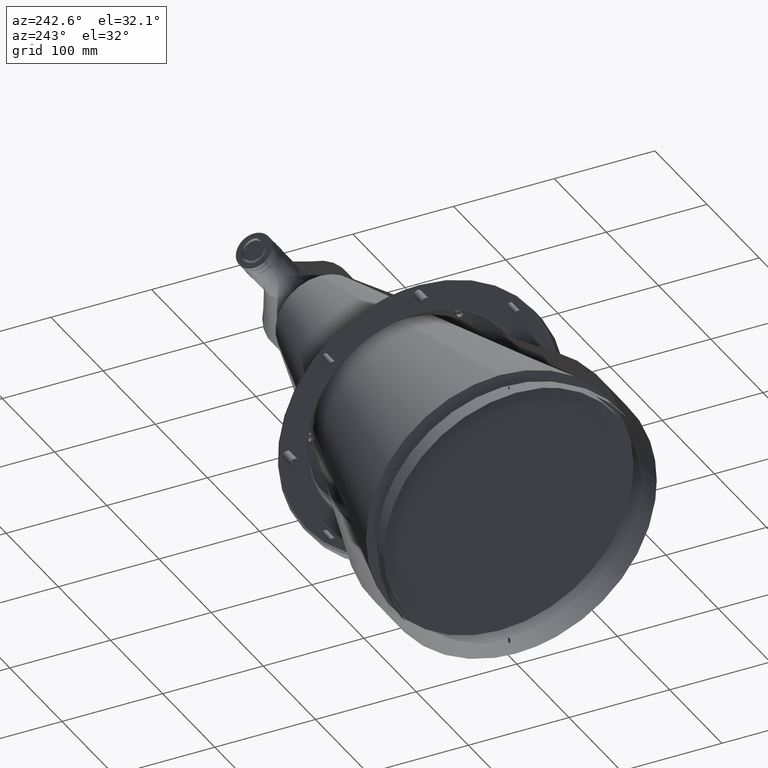
[diagram: clean part render]
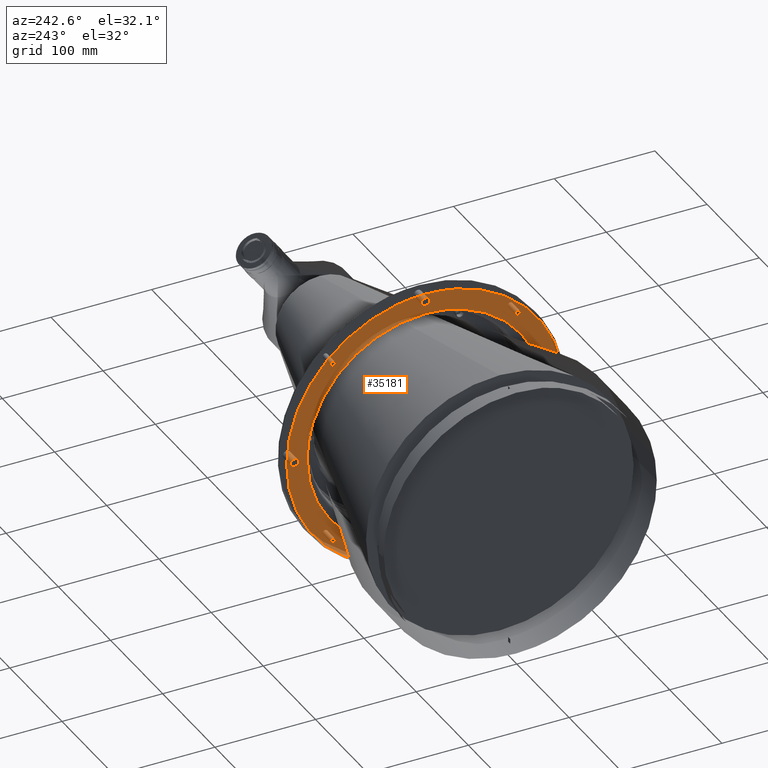
[diagram: same view with one face highlighted and labeled with its STEP entity id]
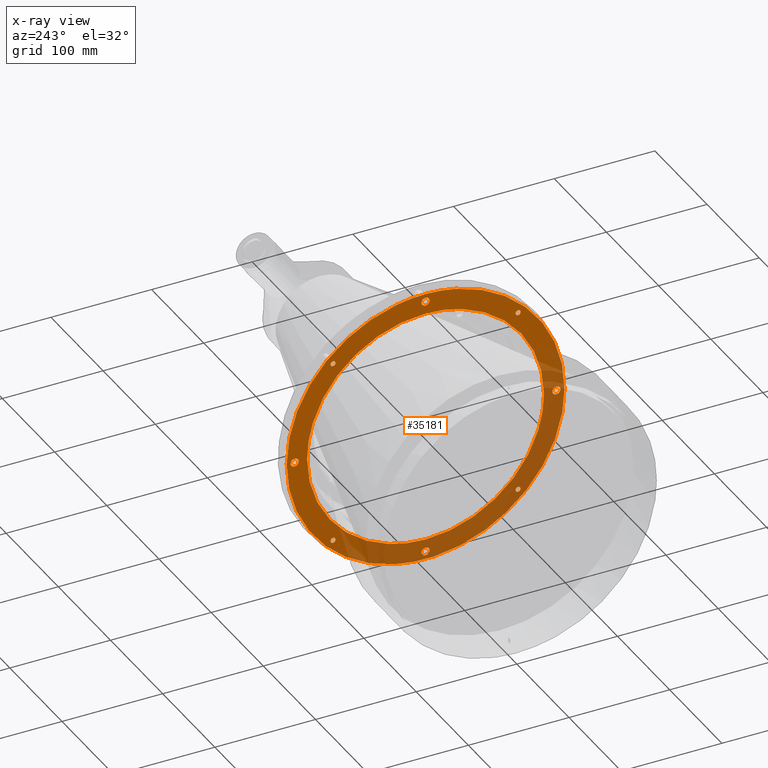
[diagram: x-ray of the same camera — body ghosted, the highlighted face saturated]
A machine part, auxiliary view. The second image highlights one B-rep face of the part: STEP entity #35181.
The next image is the same camera in x-ray: the body ghosted, the highlighted face saturated — about 40% of this face is hidden behind the body in this view.
In plain terms, the highlighted planar face has unit normal (1, 0, 0).
Its self-contained STEP definition (entity closure, byte-faithful):
#32 = CARTESIAN_POINT ( 'NONE',  ( 174.9999999973710203, -89.42388155400415428, 92.25113078878062822 ) ) ;
#43 = CARTESIAN_POINT ( 'NONE',  ( 174.9999999973710203, -133.9999999999942588, 0.5235987756434310469 ) ) ;
#201 = CARTESIAN_POINT ( 'NONE',  ( 175.0000000000000284, -21.31007127201104367, -136.3635478540250006 ) ) ;
#217 = CARTESIAN_POINT ( 'NONE',  ( 174.9999999999999432, 41.35493405322802118, 131.7247481747010909 ) ) ;
#281 = CARTESIAN_POINT ( 'NONE',  ( 174.9999999986854959, -91.92388155403149597, 94.42388155400003313 ) ) ;
#317 = CARTESIAN_POINT ( 'NONE',  ( 175.0000000000000284, -3.851505344594728264, -117.6089826342011264 ) ) ;
#319 = CARTESIAN_POINT ( 'NONE',  ( 175.0000000000000000, -68.54244134880185868, 95.64848624314511483 ) ) ;
#447 = CARTESIAN_POINT ( 'NONE',  ( 174.9999999973710771, 3.495145553417257744, 132.0144759214836938 ) ) ;
#461 = CARTESIAN_POINT ( 'NONE',  ( 175.0000000000000284, -111.4932516577122499, -81.35324876409310946 ) ) ;
#576 = CARTESIAN_POINT ( 'NONE',  ( 174.9999999999999716, -27.80886025966525210, 135.1929693036697699 ) ) ;
#707 = CARTESIAN_POINT ( 'NONE',  ( 174.9999999973710487, -2.014475921483537491, 133.4951455534171600 ) ) ;
#723 = CARTESIAN_POINT ( 'NONE',  ( 175.0000000000000000, -91.80414329581496702, -103.0586879678365619 ) ) ;
#877 = CARTESIAN_POINT ( 'NONE',  ( 174.9999999973699971, 127.9855240785556845, 3.495145553439672259 ) ) ;
#973 = CARTESIAN_POINT ( 'NONE',  ( 175.0000000000000000, 116.1005183090206998, -19.16686815770671615 ) ) ;
#1048 = CARTESIAN_POINT ( 'NONE',  ( 174.9999999986854959, 4.000000000000123457, 130.0000000000000000 ) ) ;
#1221 = CARTESIAN_POINT ( 'NONE',  ( 174.9999999999999432, 58.83719966127716106, -101.9062467304327129 ) ) ;
#1337 = CARTESIAN_POINT ( 'NONE',  ( 175.0000000000000000, -58.83721509782491665, -101.9062756124682636 ) ) ;
#1409 = ORIENTED_EDGE ( 'NONE', *, *, #22122, .F. ) ;
#1413 = CARTESIAN_POINT ( 'NONE',  ( 174.9999999973699971, 92.57825126486704903, -94.35881324567917261 ) ) ;
#1467 = CARTESIAN_POINT ( 'NONE',  ( 175.0000000000000000, 99.92807691549379001, 62.13764023231473033 ) ) ;
#1675 = CARTESIAN_POINT ( 'NONE',  ( 175.0000000000000284, -124.2545224643027808, -60.08271832668319234 ) ) ;
#1928 = CARTESIAN_POINT ( 'NONE',  ( 174.9999999999999716, -133.6178032215945279, 34.57484071799687797 ) ) ;
#1977 = CARTESIAN_POINT ( 'NONE',  ( 175.0000000000000000, 111.4267150026646789, 37.82573687787313332 ) ) ;
#2362 = CARTESIAN_POINT ( 'NONE',  ( 174.9999999986854959, -129.9999999999550084, 4.000000000000121680 ) ) ;
#2476 = CARTESIAN_POINT ( 'NONE',  ( 174.9999999986854959, -4.000000000000000000, 130.0000000000000000 ) ) ;
#2559 = CARTESIAN_POINT ( 'NONE',  ( 175.0000000000000568, 121.3127834432692111, -65.91552796041663953 ) ) ;
#2675 = CARTESIAN_POINT ( 'NONE',  ( 175.0000000000000284, 7.957994982361006109, -137.7889962146408607 ) ) ;
#3019 = CARTESIAN_POINT ( 'NONE',  ( 174.9999999973699971, 89.92471444802417579, 93.46024835396289632 ) ) ;
#3050 = CARTESIAN_POINT ( 'NONE',  ( 174.9999999999999716, -127.1510144905463591, 53.82401436148975193 ) ) ;
#3173 = CARTESIAN_POINT ( 'NONE',  ( 175.0000000000000284, -117.6089662599592458, 3.851671601944247847 ) ) ;
#3244 = CARTESIAN_POINT ( 'NONE',  ( 174.9999999973699971, 89.42388155399578409, -92.25113078871689254 ) ) ;
#3324 = CARTESIAN_POINT ( 'NONE',  ( 174.9999999999999716, 120.7550793196317898, 66.93174935403088455 ) ) ;
#3387 = VERTEX_POINT ( 'NONE', #50669 ) ;
#3487 = CARTESIAN_POINT ( 'NONE',  ( 174.9999999973699971, 130.5235987756432507, 3.999999999994106492 ) ) ;
#3564 = CARTESIAN_POINT ( 'NONE',  ( 175.0000000000000000, -51.84396876671928567, 127.9712344812958520 ) ) ;
#3581 = CARTESIAN_POINT ( 'NONE',  ( 175.0000000000000000, 137.8925730720128513, 6.876521255080387363 ) ) ;
#3585 = CARTESIAN_POINT ( 'NONE',  ( 174.9999999999955094, 117.6089662599588053, 1.283386079846524005E-15 ) ) ;
#3614 = EDGE_CURVE ( 'NONE', #15705, #41089, #34076, .T. ) ;
#3688 = CARTESIAN_POINT ( 'NONE',  ( 175.0000000000000000, -26.72186765406294029, 114.5977354738205065 ) ) ;
#3755 = CARTESIAN_POINT ( 'NONE',  ( 174.9999999973700255, 133.4951455534398121, 2.014475921444219164 ) ) ;
#3787 = CARTESIAN_POINT ( 'NONE',  ( 174.9999999973710487, 3.495145553417009943, -127.9855240785163204 ) ) ;
#3825 = CARTESIAN_POINT ( 'NONE',  ( 175.0000000000000284, -71.97215786969924523, 117.7672549590242426 ) ) ;
#3877 = ORIENTED_EDGE ( 'NONE', *, *, #41297, .F. ) ;
#3921 = CARTESIAN_POINT ( 'NONE',  ( 174.9999999973710203, -133.1986673695651575, 2.458186879935836178 ) ) ;
#3987 = EDGE_CURVE ( 'NONE', #36538, #34274, #13536, .T. ) ;
#4002 = B_SPLINE_CURVE_WITH_KNOTS ( 'NONE', 3,
 ( #42285, #6722, #49306, #13727, #29575, #17875, #41528, #5966, #37885, #49823, #10607, #45928, #10359, #33747, #49563, #22275, #29835, #45682, #38133, #2559, #18372, #34246, #14484, #30335, #46179, #39152, #23032, #11882, #27973, #38896, #19923, #3581, #31116, #34751, #8003, #43820, #39408, #47204, #24063, #4102, #19411, #3324, #31626, #46695, #31884, #50836, #8259, #7494, #35529, #43052, #27715, #14999, #39665, #35784, #35015, #39921, #18885, #50584, #217, #16011, #47711, #7749, #15258, #19663, #23800, #35278 ),
 .UNSPECIFIED., .F., .F.,
 ( 4, 2, 2, 2, 2, 2, 2, 2, 2, 2, 2, 2, 2, 2, 2, 2, 2, 2, 2, 2, 2, 2, 2, 2, 2, 2, 2, 2, 2, 2, 2, 2, 4 ),
 ( 0.000000000000000000, 0.03125000000000000694, 0.06250000000000001388, 0.09374999999999993061, 0.1249999999999998612, 0.1562499999999997780, 0.1874999999999996947, 0.2187499999999996392, 0.2499999999999995559, 0.2812499999999995004, 0.3124999999999993894, 0.3437499999999993894, 0.3749999999999993894, 0.4062499999999993894, 0.4374999999999993339, 0.4687499999999992784, 0.4999999999999992228, 0.5312499999999992228, 0.5624999999999992228, 0.5937499999999992228, 0.6249999999999992228, 0.6562499999999992228, 0.6874999999999992228, 0.7187499999999992228, 0.7499999999999992228, 0.7812499999999994449, 0.8124999999999995559, 0.8437499999999996669, 0.8749999999999996669, 0.9062499999999997780, 0.9374999999999998890, 0.9687500000000000000, 1.000000000000000000 ),
 .UNSPECIFIED. ) ;
#4085 = CARTESIAN_POINT ( 'NONE',  ( 175.0000000000000284, -93.48007779314282573, -101.5410519837664651 ) ) ;
#4102 = CARTESIAN_POINT ( 'NONE',  ( 174.9999999999999716, 126.3522244026960237, 55.64857268177456007 ) ) ;
#4204 = CARTESIAN_POINT ( 'NONE',  ( 175.0000000000000000, -26.72187404368004948, -114.5977675928566697 ) ) ;
#4213 = CARTESIAN_POINT ( 'NONE',  ( 174.9999999973699971, 93.18292900489929309, 89.73941558309816457 ) ) ;
#4273 = CARTESIAN_POINT ( 'NONE',  ( 174.9999999973700255, 133.8958907066616177, -1.046991537481099188 ) ) ;
#4343 = CARTESIAN_POINT ( 'NONE',  ( 175.0000000000000568, -129.5971386608340481, -47.63416246766911399 ) ) ;
#4428 = CARTESIAN_POINT ( 'NONE',  ( 174.9999999973710487, -91.26951184313263354, 94.35881324567911577 ) ) ;
#4544 = CARTESIAN_POINT ( 'NONE',  ( 174.9999999986849843, 91.92388155403200756, -89.42388155399999050 ) ) ;
#4604 = CARTESIAN_POINT ( 'NONE',  ( 174.9999999999999716, 99.92804968645302210, -62.13762203785347538 ) ) ;
#4609 = CARTESIAN_POINT ( 'NONE',  ( 175.0000000000000000, -96.75118481584242147, -98.42939556940797274 ) ) ;
#4659 = B_SPLINE_CURVE_WITH_KNOTS ( 'NONE', 3,
 ( #20101, #16201, #31806, #7152, #23206, #32065, #47891, #12317, #38816, #3244, #11296, #8959, #36979, #49171, #13083, #44007, #12824, #16717 ),
 .UNSPECIFIED., .F., .F.,
 ( 4, 2, 2, 2, 2, 2, 2, 2, 4 ),
 ( 0.5000000000000000000, 0.5625000000000000000, 0.6250000000000000000, 0.6875000000000000000, 0.7500000000000000000, 0.8125000000000000000, 0.8750000000000000000, 0.9375000000000000000, 1.000000000000000000 ),
 .UNSPECIFIED. ) ;
#4692 = CARTESIAN_POINT ( 'NONE',  ( 174.9999999973710203, 0.5235987755984409242, 125.9999999999998579 ) ) ;
#4726 = CARTESIAN_POINT ( 'NONE',  ( 175.0000000000000000, -52.04375073504507299, -105.5374208329733250 ) ) ;
#4767 = CARTESIAN_POINT ( 'NONE',  ( 174.9999999973700540, 128.9530084625190511, -3.895890706661726544 ) ) ;
#4865 = CARTESIAN_POINT ( 'NONE',  ( 175.0000000000000000, -110.1453480196210677, -83.16913768292997133 ) ) ;
#4951 = CARTESIAN_POINT ( 'NONE',  ( 174.9999999973710487, -132.0144759214443297, 3.495145553439919173 ) ) ;
#4970 = CARTESIAN_POINT ( 'NONE',  ( 174.9999999973710203, -93.92304865997597574, 90.38751475403752522 ) ) ;
#4980 = CARTESIAN_POINT ( 'NONE',  ( 175.0000000000000000, -37.82574638386713417, -111.4267463411252663 ) ) ;
#5113 = CARTESIAN_POINT ( 'NONE',  ( 175.0000000000000000, 80.43866044540602900, 85.88551153946906425 ) ) ;
#5121 = CARTESIAN_POINT ( 'NONE',  ( 175.0000000000000000, 15.36065223881862707, -116.6651171064647201 ) ) ;
#5128 = VERTEX_POINT ( 'NONE', #5179 ) ;
#5179 = CARTESIAN_POINT ( 'NONE',  ( 174.9999999986854959, -4.000000000000123457, -130.0000000000000000 ) ) ;
#5189 = CARTESIAN_POINT ( 'NONE',  ( 174.9999999986854959, -129.9999999999550084, 4.000000000000121680 ) ) ;
#5274 = CARTESIAN_POINT ( 'NONE',  ( 174.9999999973700255, 127.5418131201362399, 3.198667369620344036 ) ) ;
#5334 = EDGE_CURVE ( 'NONE', #41089, #10769, #6554, .T. ) ;
#5358 = VERTEX_POINT ( 'NONE', #29126 ) ;
#5363 = VERTEX_POINT ( 'NONE', #28617 ) ;
#5368 = CARTESIAN_POINT ( 'NONE',  ( 175.0000000000000000, 114.5977354736293137, 26.72186765570621603 ) ) ;
#5508 = CARTESIAN_POINT ( 'NONE',  ( 174.9999999973710203, -127.9855240784770416, 3.495145553394600757 ) ) ;
#5811 = CARTESIAN_POINT ( 'NONE',  ( 174.9999999973710203, 3.999999999999996447, -130.5235987755983444 ) ) ;
#5834 = CARTESIAN_POINT ( 'NONE',  ( 175.0000000000000568, -25.75911473813938457, -135.5934065428979807 ) ) ;
#5966 = CARTESIAN_POINT ( 'NONE',  ( 175.0000000000000284, 69.26145160226917596, -119.4340810451776633 ) ) ;
#6023 = CARTESIAN_POINT ( 'NONE',  ( 174.9999999973710203, -126.1041092933384249, -1.046991537480854939 ) ) ;
#6091 = CARTESIAN_POINT ( 'NONE',  ( 175.0000000000000853, 14.70884914374548025, -137.2324510356646670 ) ) ;
#6144 = VERTEX_POINT ( 'NONE', #11915 ) ;
#6247 = CARTESIAN_POINT ( 'NONE',  ( 174.9999999973710203, -90.38751475408805902, -89.92471444798511016 ) ) ;
#6336 = CARTESIAN_POINT ( 'NONE',  ( 174.9999999973710487, -93.46024835396252683, -89.92471444802396263 ) ) ;
#6554 = B_SPLINE_CURVE_WITH_KNOTS ( 'NONE', 3,
 ( #30573, #23527, #31354, #39135, #42518, #38368, #3564, #50314, #39391, #50566, #3825, #47187, #35260, #34733, #14982, #11865, #19393, #26674, #51068, #46422, #19647, #18609, #27443, #15496, #35512, #15745, #42269, #34477, #14720, #38877, #10848, #6961, #22761, #38623, #3050, #18864, #30832, #46677, #26935, #1928, #37504, #20686, #32125, #12377, #16261, #12628, #36282, #29446, #15993, #43551, #39904, #47695, #39649, #8242, #21646, #40421, #17745, #24046, #44070, #36535, #23783, #4343, #44333, #27699, #1675, #20161, #36026, #40166, #24566, #49429, #43803, #461, #4865, #47949, #28227, #8504, #20420, #24311, #4609, #4085, #723, #16515, #32383, #17489, #48208, #33348, #19906, #28482, #12119, #35767, #8767, #49169, #33616, #27955, #13596, #45295, #9718, #7985, #25531, #41390, #5834, #201, #31867, #34618, #34880, #26814, #19014, #29954, #22897, #38505, #2675, #25795, #6091, #37759, #14862, #22644 ),
 .UNSPECIFIED., .F., .F.,
 ( 4, 2, 2, 2, 2, 2, 2, 2, 2, 2, 2, 2, 2, 2, 2, 2, 2, 2, 2, 2, 2, 2, 2, 2, 2, 2, 2, 2, 2, 2, 2, 2, 2, 2, 2, 2, 2, 2, 2, 2, 2, 2, 2, 2, 2, 2, 2, 2, 2, 2, 2, 2, 2, 2, 2, 2, 2, 4 ),
 ( 0.06580851905960719006, 0.08040526094930078305, 0.09500200283899438991, 0.1241954866183816453, 0.1533889703977688868, 0.1679857122874625075, 0.1825824541771561282, 0.1971791960668497490, 0.2117759379565433975, 0.2263726798462369905, 0.2409694217359306390, 0.2555661636256242319, 0.2701629055153178527, 0.2847596474050114734, 0.2993563892947051497, 0.3139531311843987704, 0.3285498730740924467, 0.3577433568534796882, 0.3723400987431733089, 0.3869368406328669296, 0.4015335825225606614, 0.4161303244122542822, 0.4307270663019477919, 0.4453238081916414126, 0.4599205500813350334, 0.4745172919710286541, 0.4891140338607222748, 0.5037107757504157846, 0.5183075176401094053, 0.5329042595298031371, 0.5620977433091902675, 0.5912912270885773980, 0.6058879689782711297, 0.6204847108679647505, 0.6350814527576583712, 0.6496781946473519920, 0.6642749365370456127, 0.6788716784267391224, 0.6934684203164327432, 0.7080651622061262529, 0.7226619040958199847, 0.7372586459855136054, 0.7518553878752071151, 0.7664521297649007359, 0.7956456135442879773, 0.8102423554339818201, 0.8248390973236754409, 0.8394358392133691726, 0.8540325811030629044, 0.8686293229927565251, 0.8832260648824502569, 0.8978228067721439887, 0.9124195486618376094, 0.9270162905515313412, 0.9416130324412250729, 0.9562097743309188047, 0.9708065162206125365, 1.000000000000000000 ),
 .UNSPECIFIED. ) ;
#6680 = CARTESIAN_POINT ( 'NONE',  ( 174.9999999973699687, 89.73941558313043743, 93.18292900495524123 ) ) ;
#6722 = CARTESIAN_POINT ( 'NONE',  ( 174.9999999999999716, 34.39086051532083133, -133.7120563847917083 ) ) ;
#6956 = DIRECTION ( 'NONE',  ( 0.000000000000000000, 1.000000000000000000, 0.000000000000000000 ) ) ;
#6961 = CARTESIAN_POINT ( 'NONE',  ( 174.9999999999999716, -121.2134300960887714, 66.00318147826048687 ) ) ;
#7152 = CARTESIAN_POINT ( 'NONE',  ( 174.9999999973699971, 90.66483410310070212, -89.73941558309823563 ) ) ;
#7181 = CARTESIAN_POINT ( 'NONE',  ( 174.9999999973699687, 89.92471444798485436, 90.38751475408828640 ) ) ;
#7335 = CARTESIAN_POINT ( 'NONE',  ( 175.0000000000000284, -95.64851347242012025, 68.54245954283778985 ) ) ;
#7338 = CARTESIAN_POINT ( 'NONE',  ( 174.9999999986849843, 91.92388155396801608, 89.42388155399996208 ) ) ;
#7401 = CARTESIAN_POINT ( 'NONE',  ( 174.9999999973699971, 133.1986673696204946, 2.458186879863627272 ) ) ;
#7494 = CARTESIAN_POINT ( 'NONE',  ( 175.0000000000000284, 98.16152004186251645, 97.08740513668192307 ) ) ;
#7599 = CARTESIAN_POINT ( 'NONE',  ( 175.0000000000000000, -52.04376617182886378, 105.5374497149115172 ) ) ;
#7652 = EDGE_CURVE ( 'NONE', #5358, #6144, #41911, .T. ) ;
#7659 = CARTESIAN_POINT ( 'NONE',  ( 174.9999999986849843, 130.0000000000449631, 3.999999999999998224 ) ) ;
#7705 = CARTESIAN_POINT ( 'NONE',  ( 174.9999999973699971, 90.38751475403709890, 89.92471444802417579 ) ) ;
#7719 = CARTESIAN_POINT ( 'NONE',  ( 175.0000000000000000, 41.44866966158900112, 110.1304089248057352 ) ) ;
#7749 = CARTESIAN_POINT ( 'NONE',  ( 175.0000000000000000, 20.91708018778799172, 136.4702312215629831 ) ) ;
#7813 = CARTESIAN_POINT ( 'NONE',  ( 174.9999999973710203, -89.92471444798516700, 90.38751475408811586 ) ) ;
#7853 = CARTESIAN_POINT ( 'NONE',  ( 174.9999999973699971, 94.42388155400423955, 92.25113078871693517 ) ) ;
#7952 = CARTESIAN_POINT ( 'NONE',  ( 174.9999999973710203, 2.014475921483529941, -126.5048544465828542 ) ) ;
#7973 = CARTESIAN_POINT ( 'NONE',  ( 175.0000000000769944, 4.776905207635640969E-12, 117.6089662600000025 ) ) ;
#7985 = CARTESIAN_POINT ( 'NONE',  ( 175.0000000000000284, -34.57399373279377386, -133.6180254109083592 ) ) ;
#8003 = CARTESIAN_POINT ( 'NONE',  ( 175.0000000000000000, 136.0387900377923529, 23.56029407795190167 ) ) ;
#8208 = CARTESIAN_POINT ( 'NONE',  ( 174.9999999973710203, -1.046991537437276687, -126.1041092933266299 ) ) ;
#8242 = CARTESIAN_POINT ( 'NONE',  ( 175.0000000000000853, -137.4549923913138230, -12.45938331131948651 ) ) ;
#8259 = CARTESIAN_POINT ( 'NONE',  ( 175.0000000000000000, 103.8846505472464941, 90.93744681259950369 ) ) ;
#8329 = CARTESIAN_POINT ( 'NONE',  ( 174.9999999973710487, 3.895890706673502901, 128.9530084625628490 ) ) ;
#8367 = CARTESIAN_POINT ( 'NONE',  ( 175.0000000000000853, -111.4267463410885313, 37.82574638389498745 ) ) ;
#8387 = CARTESIAN_POINT ( 'NONE',  ( 175.0000000004829985, 8.039315690569779671E-16, 138.0000000009644054 ) ) ;
#8436 = CARTESIAN_POINT ( 'NONE',  ( 174.9999999973699971, 93.18292900489926467, -94.10834752490175958 ) ) ;
#8471 = CARTESIAN_POINT ( 'NONE',  ( 174.9999999973710203, 3.198667369592690157, -127.5418131201002723 ) ) ;
#8490 = CARTESIAN_POINT ( 'NONE',  ( 174.9999999973709919, 1.046991537437268915, 133.8958907066733559 ) ) ;
#8504 = CARTESIAN_POINT ( 'NONE',  ( 175.0000000000000568, -102.9826271155398558, -91.88950301490204708 ) ) ;
#8583 = CARTESIAN_POINT ( 'NONE',  ( 174.9999999973710203, -89.73941558309847721, 90.66483410310051738 ) ) ;
#8621 = CARTESIAN_POINT ( 'NONE',  ( 175.0000000000000284, -25.30862334509039968, 135.6833461226316615 ) ) ;
#8622 = CARTESIAN_POINT ( 'NONE',  ( 175.0000000000000284, -93.35634210985136860, -71.63309484823453488 ) ) ;
#8756 = CARTESIAN_POINT ( 'NONE',  ( 175.0000000000000000, 71.63307407324786880, 93.35631679461040733 ) ) ;
#8767 = CARTESIAN_POINT ( 'NONE',  ( 175.0000000000000284, -57.93706517368222109, -125.2693578877478728 ) ) ;
#8787 = EDGE_CURVE ( 'NONE', #50822, #40316, #4659, .T. ) ;
#8904 = VERTEX_POINT ( 'NONE', #28419 ) ;
#8959 = CARTESIAN_POINT ( 'NONE',  ( 174.9999999973699971, 89.73941558309823563, -93.18292900489929309 ) ) ;
#9007 = CARTESIAN_POINT ( 'NONE',  ( 175.0000000000000284, 48.56533610897901809, 107.1826246100382747 ) ) ;
#9014 = CARTESIAN_POINT ( 'NONE',  ( 175.0000000000000000, 19.16687454425916926, -116.1005504288138468 ) ) ;
#9130 = CARTESIAN_POINT ( 'NONE',  ( 175.0000000000000284, -117.6089662599592316, -3.852005739937500728 ) ) ;
#9190 = CARTESIAN_POINT ( 'NONE',  ( 174.9999999973710487, 2.014475921483537491, -133.4951455534171600 ) ) ;
#9265 = CARTESIAN_POINT ( 'NONE',  ( 175.0000000000000568, 3.851505344594348568, -117.6089498857985234 ) ) ;
#9310 = VERTEX_POINT ( 'NONE', #5189 ) ;
#9369 = CARTESIAN_POINT ( 'NONE',  ( 174.9999999973710203, -93.18292900489957731, 89.73941558309857669 ) ) ;
#9383 = CARTESIAN_POINT ( 'NONE',  ( 175.0000000000769944, 4.776905207635640969E-12, 117.6089662600000025 ) ) ;
#9397 = CARTESIAN_POINT ( 'NONE',  ( 174.9999999973710487, -126.8013326303795196, 2.458186879863869745 ) ) ;
#9696 = CARTESIAN_POINT ( 'NONE',  ( 174.9999999973710487, 3.495145553417015716, -132.0144759214836654 ) ) ;
#9718 = CARTESIAN_POINT ( 'NONE',  ( 175.0000000000000000, -38.92552865214990732, -132.4156911597516455 ) ) ;
#9920 = CARTESIAN_POINT ( 'NONE',  ( 174.9999999973709919, -129.4764012244467324, -4.000000000005885070 ) ) ;
#10168 = CARTESIAN_POINT ( 'NONE',  ( 174.9999999973710203, -126.5048544465602305, 2.014475921444463413 ) ) ;
#10359 = CARTESIAN_POINT ( 'NONE',  ( 175.0000000000000284, 92.93543105344969035, -102.1011505679803264 ) ) ;
#10386 = CARTESIAN_POINT ( 'NONE',  ( 174.9999999973710487, -90.38751475403749680, -93.92304865997583363 ) ) ;
#10587 = FACE_BOUND ( 'NONE', #43424, .T. ) ;
#10607 = CARTESIAN_POINT ( 'NONE',  ( 175.0000000000000000, 83.24403253061650787, -110.1456771741506770 ) ) ;
#10769 = VERTEX_POINT ( 'NONE', #33530 ) ;
#10822 = CARTESIAN_POINT ( 'NONE',  ( 174.9999999973699971, 91.26951184313296039, 94.35881324567921524 ) ) ;
#10848 = CARTESIAN_POINT ( 'NONE',  ( 175.0000000000000000, -118.9877064071567219, 69.93585239331241610 ) ) ;
#11027 = CARTESIAN_POINT ( 'NONE',  ( 174.9999999973699687, 130.5235987755532960, -4.000000000006133760 ) ) ;
#11228 = CARTESIAN_POINT ( 'NONE',  ( 174.9999999973699971, 93.46024835396289632, 93.92304865997579100 ) ) ;
#11296 = CARTESIAN_POINT ( 'NONE',  ( 174.9999999973699687, 89.48894986232083681, -92.57825126486702061 ) ) ;
#11486 = CARTESIAN_POINT ( 'NONE',  ( 174.9999999973699971, 94.35881324566246064, 91.26951184307063158 ) ) ;
#11584 = CARTESIAN_POINT ( 'NONE',  ( 174.9999999986849843, 91.92388155396801608, 89.42388155399996208 ) ) ;
#11604 = CARTESIAN_POINT ( 'NONE',  ( 175.0000000000000000, 30.45441524278836098, 113.6627809745360622 ) ) ;
#11697 = CARTESIAN_POINT ( 'NONE',  ( 174.9999999973710203, 3.198667369592942400, 127.5418131201003007 ) ) ;
#11726 = CARTESIAN_POINT ( 'NONE',  ( 174.9999999973709919, -92.57825126492899415, 94.35881324566258854 ) ) ;
#11733 = CARTESIAN_POINT ( 'NONE',  ( 174.9999999999999716, -116.6651496971322217, 15.36065544847628850 ) ) ;
#11797 = CARTESIAN_POINT ( 'NONE',  ( 174.9999999973700255, 133.4951455533945079, -2.014475921523097401 ) ) ;
#11831 = CARTESIAN_POINT ( 'NONE',  ( 174.9999999973709919, 3.895890706673255099, -128.9530084625628774 ) ) ;
#11865 = CARTESIAN_POINT ( 'NONE',  ( 175.0000000000000284, -86.72695967427758035, 107.3665313668431622 ) ) ;
#11882 = CARTESIAN_POINT ( 'NONE',  ( 175.0000000000000000, 136.8502900557244857, -18.26598928854105708 ) ) ;
#11903 = ORIENTED_EDGE ( 'NONE', *, *, #26344, .F. ) ;
#11915 = CARTESIAN_POINT ( 'NONE',  ( 175.0000000000175078, -117.6089662599592032, 3.067063619559054763E-14 ) ) ;
#11944 = CARTESIAN_POINT ( 'NONE',  ( 174.9999999973709919, -91.26951184307101528, 89.48894986233763404 ) ) ;
#12119 = CARTESIAN_POINT ( 'NONE',  ( 175.0000000000000284, -66.02752586423082448, -121.2632401934216517 ) ) ;
#12199 = CARTESIAN_POINT ( 'NONE',  ( 174.9999999973710203, 1.046991537437276687, 126.1041092933266299 ) ) ;
#12232 = CARTESIAN_POINT ( 'NONE',  ( 175.0000000000000284, -48.56533610829622205, -107.1826246103211417 ) ) ;
#12235 = CARTESIAN_POINT ( 'NONE',  ( 175.0000000000000284, -58.83719966103515731, 101.9062467305333257 ) ) ;
#12240 = CARTESIAN_POINT ( 'NONE',  ( 174.9999999973699971, 92.57825126492939205, 94.35881324566246064 ) ) ;
#12310 = CARTESIAN_POINT ( 'NONE',  ( 174.9999999973699687, 94.10834752486954358, -93.18292900495521280 ) ) ;
#12317 = CARTESIAN_POINT ( 'NONE',  ( 174.9999999973699971, 89.48894986233757720, -91.26951184307063158 ) ) ;
#12364 = CARTESIAN_POINT ( 'NONE',  ( 174.9999999973710203, 2.014475921483775522, 133.4951455534171600 ) ) ;
#12371 = CARTESIAN_POINT ( 'NONE',  ( 175.0000000000000000, 105.5374208332496835, -52.04375073451880951 ) ) ;
#12377 = CARTESIAN_POINT ( 'NONE',  ( 174.9999999999999716, -136.3634181774093861, 21.31093270252813809 ) ) ;
#12516 = VERTEX_POINT ( 'NONE', #18920 ) ;
#12613 = CARTESIAN_POINT ( 'NONE',  ( 174.9999999973710487, -3.495145553417015716, 132.0144759214836654 ) ) ;
#12615 = CARTESIAN_POINT ( 'NONE',  ( 175.0000000000000853, 68.54244662931503740, 95.64852407014750213 ) ) ;
#12621 = CARTESIAN_POINT ( 'NONE',  ( 175.0000000000000000, 93.35631679461533849, -71.63307407323252107 ) ) ;
#12628 = CARTESIAN_POINT ( 'NONE',  ( 175.0000000000000000, -137.2445281559253942, 14.59576313549157334 ) ) ;
#12704 = CARTESIAN_POINT ( 'NONE',  ( 174.9999999973710203, -90.38751475403746838, 89.92471444802410474 ) ) ;
#12731 = CARTESIAN_POINT ( 'NONE',  ( 174.9999999973710487, -92.57825126486736167, 89.48894986232107840 ) ) ;
#12824 = CARTESIAN_POINT ( 'NONE',  ( 174.9999999973699687, 91.59663231921905435, -94.42388155399584093 ) ) ;
#12876 = CARTESIAN_POINT ( 'NONE',  ( 175.0000000000000000, 62.13764023148551985, -99.92807691600786768 ) ) ;
#13000 = CARTESIAN_POINT ( 'NONE',  ( 175.0000000000000000, -101.9062467307105067, -58.83719966069519813 ) ) ;
#13076 = CARTESIAN_POINT ( 'NONE',  ( 174.9999999973699971, 93.92304865997579100, -93.46024835396288211 ) ) ;
#13083 = CARTESIAN_POINT ( 'NONE',  ( 174.9999999973699687, 90.66483410304478241, -94.10834752486952937 ) ) ;
#13132 = CARTESIAN_POINT ( 'NONE',  ( 174.9999999999999432, 116.1005504288007018, 19.16687454358300613 ) ) ;
#13137 = CARTESIAN_POINT ( 'NONE',  ( 175.0000000000000568, 52.04376617159181961, -105.5374497150092736 ) ) ;
#13175 = EDGE_CURVE ( 'NONE', #3387, #17196, #30184, .T. ) ;
#13299 = CARTESIAN_POINT ( 'NONE',  ( 174.9999999973699971, 125.9999999999940030, -0.5235987755534424748 ) ) ;
#13536 = B_SPLINE_CURVE_WITH_KNOTS ( 'NONE', 3,
 ( #7973, #31342, #16248, #47938, #19380, #47174, #11604, #27429, #7719, #9007, #20673, #48707, #17279, #12615, #8756, #48966, #5113, #17796, #24555, #37554, #25324, #1467, #32624, #40409, #25065, #44835, #1977, #48456, #5368, #13132, #29240, #48196, #33143, #45089 ),
 .UNSPECIFIED., .F., .F.,
 ( 4, 2, 2, 2, 2, 2, 2, 2, 2, 2, 2, 2, 2, 2, 2, 2, 4 ),
 ( 0.000000000000000000, 0.06249999999999991673, 0.1249999999999998335, 0.1874999999999997502, 0.2499999999999996669, 0.3124999999999995559, 0.3749999999999995004, 0.4374999999999994449, 0.4999999999999993339, 0.5624999999999992228, 0.6249999999999991118, 0.6874999999999993339, 0.7499999999999994449, 0.8124999999999995559, 0.8749999999999996669, 0.9374999999999998890, 1.000000000000000000 ),
 .UNSPECIFIED. ) ;
#13574 = CARTESIAN_POINT ( 'NONE',  ( 174.9999999973710203, -3.198667369592936627, -132.4581868798997561 ) ) ;
#13596 = CARTESIAN_POINT ( 'NONE',  ( 175.0000000000000000, -45.37930499198225220, -130.3450894388224697 ) ) ;
#13727 = CARTESIAN_POINT ( 'NONE',  ( 174.9999999999999716, 46.43304232014970268, -130.0216173337806538 ) ) ;
#14003 = CARTESIAN_POINT ( 'NONE',  ( 174.9999999973710487, -89.92471444802404790, -90.38751475403741154 ) ) ;
#14034 = CARTESIAN_POINT ( 'NONE',  ( 174.9999999973710487, -127.9855240785556845, -3.495145553439672259 ) ) ;
#14089 = CARTESIAN_POINT ( 'NONE',  ( 174.9999999973710203, -92.25113078878052875, -89.42388155400412586 ) ) ;
#14327 = CARTESIAN_POINT ( 'NONE',  ( 174.9999999973710771, -3.495145553417257744, -132.0144759214836938 ) ) ;
#14484 = CARTESIAN_POINT ( 'NONE',  ( 175.0000000000000000, 128.4155733907707884, -50.70582178372361426 ) ) ;
#14511 = CARTESIAN_POINT ( 'NONE',  ( 174.9999999973710203, -89.42388155400422534, -91.59663231921938120 ) ) ;
#14720 = CARTESIAN_POINT ( 'NONE',  ( 175.0000000000000000, -115.4134870410252915, 75.68925594696621317 ) ) ;
#14854 = CARTESIAN_POINT ( 'NONE',  ( 174.9999999973710487, -94.10834752490146116, -90.66483410310030422 ) ) ;
#14862 = CARTESIAN_POINT ( 'NONE',  ( 175.0000000000000000, 25.88255470615999698, -135.6264251919142794 ) ) ;
#14982 = CARTESIAN_POINT ( 'NONE',  ( 174.9999999999999432, -83.16887723218280826, 110.1455731269520157 ) ) ;
#14987 = CARTESIAN_POINT ( 'NONE',  ( 174.9999999973710203, -126.5048544466055347, -2.014475921522852708 ) ) ;
#14999 = CARTESIAN_POINT ( 'NONE',  ( 174.9999999999999432, 78.90912691214147401, 113.2916499266374899 ) ) ;
#15098 = CARTESIAN_POINT ( 'NONE',  ( 175.0000000000000284, -15.36081850996116316, 116.6651007294301650 ) ) ;
#15101 = CARTESIAN_POINT ( 'NONE',  ( 174.9999999973699687, 93.46024835391172303, 89.92471444798482594 ) ) ;
#15167 = CARTESIAN_POINT ( 'NONE',  ( 174.9999999973700255, 132.4581868799356812, 3.198667369565039387 ) ) ;
#15208 = CARTESIAN_POINT ( 'NONE',  ( 174.9999999973699971, 89.42388155399576988, 91.59663231928306004 ) ) ;
#15258 = CARTESIAN_POINT ( 'NONE',  ( 174.9999999999999432, 16.75939506645724819, 137.0429273341866008 ) ) ;
#15361 = CARTESIAN_POINT ( 'NONE',  ( 174.9999999999999716, -71.63309484796943138, 93.35634211007626959 ) ) ;
#15496 = CARTESIAN_POINT ( 'NONE',  ( 175.0000000000000284, -106.0073791972151440, 88.38306445649986642 ) ) ;
#15586 = CARTESIAN_POINT ( 'NONE',  ( 174.9999999973710203, -132.4581868798638027, 3.198667369620590062 ) ) ;
#15673 = CARTESIAN_POINT ( 'NONE',  ( 174.9999999973699971, 133.8958907066851793, 1.046991537393205052 ) ) ;
#15705 = VERTEX_POINT ( 'NONE', #8387 ) ;
#15709 = CARTESIAN_POINT ( 'NONE',  ( 174.9999999973710487, -3.895890706673502901, -128.9530084625628490 ) ) ;
#15715 = CARTESIAN_POINT ( 'NONE',  ( 174.9999999973699687, 91.59663231928304583, 94.42388155400422534 ) ) ;
#15745 = CARTESIAN_POINT ( 'NONE',  ( 174.9999999999999432, -110.2145197334859006, 83.07750376679751980 ) ) ;
#15823 = CARTESIAN_POINT ( 'NONE',  ( 174.9999999973710203, -90.38751475408801639, 93.92304866001494190 ) ) ;
#15834 = CARTESIAN_POINT ( 'NONE',  ( 174.9999999973710203, -133.1986673696204946, -2.458186879863627272 ) ) ;
#15908 = ORIENTED_EDGE ( 'NONE', *, *, #8787, .F. ) ;
#15993 = CARTESIAN_POINT ( 'NONE',  ( 175.0000000000000000, -137.9054610532155323, 5.587469693612548305 ) ) ;
#16011 = CARTESIAN_POINT ( 'NONE',  ( 174.9999999999999432, 33.26685602599800973, 133.9961363002389021 ) ) ;
#16093 = B_SPLINE_CURVE_WITH_KNOTS ( 'NONE', 3,
 ( #31692, #24642, #11944, #20497, #12704, #7813, #8583, #28041, #23865, #32, #20242, #32203, #27782, #15823, #28308, #4428, #43630, #281 ),
 .UNSPECIFIED., .F., .F.,
 ( 4, 2, 2, 2, 2, 2, 2, 2, 4 ),
 ( 0.000000000000000000, 0.06250000000000000000, 0.1250000000000000000, 0.1875000000000000000, 0.2500000000000000000, 0.3125000000000000000, 0.3750000000000000000, 0.4375000000000000000, 0.5000000000000000000 ),
 .UNSPECIFIED. ) ;
#16118 = CARTESIAN_POINT ( 'NONE',  ( 175.0000000000000000, -99.92807691576049933, -62.13764023188932129 ) ) ;
#16120 = CARTESIAN_POINT ( 'NONE',  ( 175.0000000000000000, -62.13764023169893136, 99.92807691586550334 ) ) ;
#16201 = CARTESIAN_POINT ( 'NONE',  ( 174.9999999973699687, 91.59663231928304583, -89.42388155399581251 ) ) ;
#16248 = CARTESIAN_POINT ( 'NONE',  ( 175.0000000000000000, 7.694733651976342514, 117.4201441860303419 ) ) ;
#16261 = CARTESIAN_POINT ( 'NONE',  ( 175.0000000000000000, -136.6936515119118667, 19.07819030028146656 ) ) ;
#16371 = CARTESIAN_POINT ( 'NONE',  ( 175.0000000004740457, -30.29268542276235365, 134.6341574368697707 ) ) ;
#16414 = CARTESIAN_POINT ( 'NONE',  ( 174.9999999986849843, 130.0000000000449631, 3.999999999999998224 ) ) ;
#16501 = CARTESIAN_POINT ( 'NONE',  ( 174.9999999973710203, -2.458186879899610933, 133.1986673695927834 ) ) ;
#16502 = B_SPLINE_CURVE_WITH_KNOTS ( 'NONE', 3,
 ( #31284, #16971, #1413, #8436, #29183, #13076, #12310, #32057, #44780, #21121, #45031, #44261, #32567, #24241, #47884, #36720, #17224, #4544 ),
 .UNSPECIFIED., .F., .F.,
 ( 4, 2, 2, 2, 2, 2, 2, 2, 4 ),
 ( 0.000000000000000000, 0.06250000000000000000, 0.1250000000000000000, 0.1875000000000000000, 0.2500000000000000000, 0.3125000000000000000, 0.3750000000000000000, 0.4375000000000000000, 0.5000000000000000000 ),
 .UNSPECIFIED. ) ;
#16515 = CARTESIAN_POINT ( 'NONE',  ( 175.0000000000000284, -88.38248027864672451, -106.0078416629634290 ) ) ;
#16634 = CARTESIAN_POINT ( 'NONE',  ( 175.0000000000000284, -110.1304391800806570, -41.44868219457380576 ) ) ;
#16706 = CARTESIAN_POINT ( 'NONE',  ( 174.9999999986855244, -91.92388155403158123, -89.42388155399999050 ) ) ;
#16717 = CARTESIAN_POINT ( 'NONE',  ( 174.9999999986849843, 91.92388155396801608, -94.42388155400000471 ) ) ;
#16894 = CARTESIAN_POINT ( 'NONE',  ( 174.9999999999999716, -20.29057827819738336, 136.5240182787624406 ) ) ;
#16936 = CARTESIAN_POINT ( 'NONE',  ( 174.9999999973699687, 126.1041092933148633, -1.046991537393449301 ) ) ;
#16971 = CARTESIAN_POINT ( 'NONE',  ( 174.9999999973699687, 92.25113078871696359, -94.42388155400418270 ) ) ;
#17031 = CARTESIAN_POINT ( 'NONE',  ( 174.9999999999999432, 26.72186765502983974, -114.5977354736813396 ) ) ;
#17196 = VERTEX_POINT ( 'NONE', #20185 ) ;
#17208 = CARTESIAN_POINT ( 'NONE',  ( 174.9999999973710771, -4.000000000000244249, -130.5235987755982876 ) ) ;
#17224 = CARTESIAN_POINT ( 'NONE',  ( 174.9999999973699687, 92.25113078878092665, -89.42388155400419691 ) ) ;
#17279 = CARTESIAN_POINT ( 'NONE',  ( 175.0000000000000284, 62.13763495119503233, 99.92803908885615272 ) ) ;
#17284 = CARTESIAN_POINT ( 'NONE',  ( 174.9999999999999716, 117.6089662599590611, -3.851671600851890975 ) ) ;
#17393 = CARTESIAN_POINT ( 'NONE',  ( 174.9999999973710203, -94.42388155400411165, 92.25113078871740413 ) ) ;
#17489 = CARTESIAN_POINT ( 'NONE',  ( 175.0000000000000000, -83.07709152932579855, -110.2148604793703726 ) ) ;
#17549 = CARTESIAN_POINT ( 'NONE',  ( 175.0000000000000000, 117.4201441857388062, -7.694733654031232106 ) ) ;
#17657 = EDGE_CURVE ( 'NONE', #12516, #8904, #19253, .T. ) ;
#17745 = CARTESIAN_POINT ( 'NONE',  ( 175.0000000000000000, -136.3455272667738427, -21.42507635793931442 ) ) ;
#17796 = CARTESIAN_POINT ( 'NONE',  ( 175.0000000000000000, 85.88553469613997038, 80.43868360209394552 ) ) ;
#17858 = FACE_BOUND ( 'NONE', #18763, .T. ) ;
#17875 = CARTESIAN_POINT ( 'NONE',  ( 174.9999999999999716, 58.08896592415251803, -125.2490336529669435 ) ) ;
#17973 = CARTESIAN_POINT ( 'NONE',  ( 174.9999999973710203, -2.014475921483775522, -133.4951455534171600 ) ) ;
#18150 = CARTESIAN_POINT ( 'NONE',  ( 174.9999999973710203, -91.59663231928266214, -89.42388155399586935 ) ) ;
#18218 = CARTESIAN_POINT ( 'NONE',  ( 174.9999999973709919, -3.895890706673501569, -131.0469915374371510 ) ) ;
#18372 = CARTESIAN_POINT ( 'NONE',  ( 175.0000000000000000, 123.2602854858405124, -62.19760344318250134 ) ) ;
#18396 = CARTESIAN_POINT ( 'NONE',  ( 174.9999999973710771, -91.26951184307107212, -94.35881324566231854 ) ) ;
#18483 = CARTESIAN_POINT ( 'NONE',  ( 174.9999999973710771, -92.57825126492895151, -89.48894986233750615 ) ) ;
#18605 = FACE_BOUND ( 'NONE', #45422, .T. ) ;
#18609 = CARTESIAN_POINT ( 'NONE',  ( 174.9999999999999432, -101.5407917957607680, 93.48032654182732415 ) ) ;
#18763 = EDGE_LOOP ( 'NONE', ( #11903, #40821 ) ) ;
#18864 = CARTESIAN_POINT ( 'NONE',  ( 174.9999999999999716, -129.5852662489556621, 47.50570839581069293 ) ) ;
#18885 = CARTESIAN_POINT ( 'NONE',  ( 175.0000000000000000, 53.18719845826530701, 127.4078560071406372 ) ) ;
#18920 = CARTESIAN_POINT ( 'NONE',  ( 174.9999999986849843, 130.0000000000449631, 3.999999999999998224 ) ) ;
#18979 = VERTEX_POINT ( 'NONE', #41799 ) ;
#18995 = CARTESIAN_POINT ( 'NONE',  ( 175.0000000000000000, -37.82573687722678812, 111.4267150029880753 ) ) ;
#19014 = CARTESIAN_POINT ( 'NONE',  ( 175.0000000000000284, -5.586602330999018484, -137.9055019580286796 ) ) ;
#19253 = B_SPLINE_CURVE_WITH_KNOTS ( 'NONE', 3,
 ( #16414, #33044, #40826, #877, #5274, #39806, #24470, #21086, #48869, #13299, #16936, #48363, #20318, #28636, #36185, #4767, #44486, #40574 ),
 .UNSPECIFIED., .F., .F.,
 ( 4, 2, 2, 2, 2, 2, 2, 2, 4 ),
 ( 0.5000000000000000000, 0.5625000000000000000, 0.6250000000000001110, 0.6875000000000001110, 0.7500000000000001110, 0.8125000000000001110, 0.8750000000000000000, 0.9375000000000000000, 1.000000000000000000 ),
 .UNSPECIFIED. ) ;
#19257 = CARTESIAN_POINT ( 'NONE',  ( 175.0000000000000284, -105.5374208331779187, 52.04375073465400448 ) ) ;
#19269 = VERTEX_POINT ( 'NONE', #50229 ) ;
#19380 = CARTESIAN_POINT ( 'NONE',  ( 175.0000000000000000, 19.16686815638482955, 116.1005183094739550 ) ) ;
#19393 = CARTESIAN_POINT ( 'NONE',  ( 175.0000000000000000, -88.47106030493412732, 105.9339592448696976 ) ) ;
#19411 = CARTESIAN_POINT ( 'NONE',  ( 175.0000000000000000, 124.6023054092692064, 59.46347903334368112 ) ) ;
#19497 = VERTEX_POINT ( 'NONE', #28896 ) ;
#19613 = CARTESIAN_POINT ( 'NONE',  ( 174.9999999973710203, 2.458186879899607380, -126.8013326304071882 ) ) ;
#19616 = ORIENTED_EDGE ( 'NONE', *, *, #46016, .F. ) ;
#19647 = CARTESIAN_POINT ( 'NONE',  ( 175.0000000000000000, -98.42878160586646175, 96.75180227747888750 ) ) ;
#19663 = CARTESIAN_POINT ( 'NONE',  ( 174.9999999999999716, 8.393058323439783308, 137.8085854676093618 ) ) ;
#19727 = CARTESIAN_POINT ( 'NONE',  ( 174.9999999973710203, -3.999999999999994671, 129.4764012244016840 ) ) ;
#19739 = CARTESIAN_POINT ( 'NONE',  ( 174.9999999973710203, -133.8958907066616177, 1.046991537481099188 ) ) ;
#19756 = CARTESIAN_POINT ( 'NONE',  ( 174.9999999973710203, -93.46024835396258368, 93.92304865997607521 ) ) ;
#19906 = CARTESIAN_POINT ( 'NONE',  ( 175.0000000000000000, -75.68854363901101578, -115.4139417953664548 ) ) ;
#19917 = EDGE_CURVE ( 'NONE', #45940, #46321, #49974, .T. ) ;
#19923 = CARTESIAN_POINT ( 'NONE',  ( 174.9999999999999432, 138.0554987627201626, -1.522863563773536599 ) ) ;
#20020 = CARTESIAN_POINT ( 'NONE',  ( 175.0000000000000284, -10.17091500482825239, 137.6483002210416657 ) ) ;
#20021 = CARTESIAN_POINT ( 'NONE',  ( 175.0000000000000000, -114.5977354737917580, -26.72186765405741582 ) ) ;
#20023 = CARTESIAN_POINT ( 'NONE',  ( 175.0000000000000000, -99.92804968654908748, 62.13762203768444436 ) ) ;
#20027 = CARTESIAN_POINT ( 'NONE',  ( 174.9999999973699971, 93.92304865997579100, 90.38751475403709890 ) ) ;
#20101 = CARTESIAN_POINT ( 'NONE',  ( 174.9999999986849843, 91.92388155403200756, -89.42388155399999050 ) ) ;
#20147 = CARTESIAN_POINT ( 'NONE',  ( 174.9999999973710771, 4.000000000000244249, 130.5235987755982876 ) ) ;
#20161 = CARTESIAN_POINT ( 'NONE',  ( 175.0000000000000284, -122.2232378827026906, -64.11409078653289839 ) ) ;
#20185 = CARTESIAN_POINT ( 'NONE',  ( 174.9999999986849843, 91.92388155403200756, 94.42388155400003313 ) ) ;
#20242 = CARTESIAN_POINT ( 'NONE',  ( 174.9999999973710203, -89.48894986233753457, 92.57825126492907941 ) ) ;
#20254 = CARTESIAN_POINT ( 'NONE',  ( 174.9999999986854959, -129.9999999999550084, 4.000000000000121680 ) ) ;
#20277 = CARTESIAN_POINT ( 'NONE',  ( 175.0000000000000000, -12.70870255438368979, 137.4371299131833837 ) ) ;
#20318 = CARTESIAN_POINT ( 'NONE',  ( 174.9999999973699971, 126.8013326303795196, -2.458186879863869745 ) ) ;
#20420 = CARTESIAN_POINT ( 'NONE',  ( 175.0000000000000000, -101.4631724564731741, -93.56453098581906147 ) ) ;
#20497 = CARTESIAN_POINT ( 'NONE',  ( 174.9999999973710487, -90.66483410304513768, 89.73941558313042322 ) ) ;
#20536 = CARTESIAN_POINT ( 'NONE',  ( 174.9999999999999432, -88.46957854644560371, -77.58758185730503953 ) ) ;
#20673 = CARTESIAN_POINT ( 'NONE',  ( 174.9999999999999716, 52.04376546939847969, 105.5374129574595941 ) ) ;
#20686 = CARTESIAN_POINT ( 'NONE',  ( 175.0000000000000568, -135.1531434675157186, 27.97716443051283264 ) ) ;
#20836 = EDGE_CURVE ( 'NONE', #18979, #5363, #32815, .T. ) ;
#21043 = CARTESIAN_POINT ( 'NONE',  ( 175.0000000000000000, -19.16686815560912294, -116.1005183096385593 ) ) ;
#21086 = CARTESIAN_POINT ( 'NONE',  ( 174.9999999973699971, 126.1041092933384249, 1.046991537480854939 ) ) ;
#21121 = CARTESIAN_POINT ( 'NONE',  ( 174.9999999973699971, 94.42388155400418270, -91.59663231928304583 ) ) ;
#21232 = ORIENTED_EDGE ( 'NONE', *, *, #19917, .F. ) ;
#21550 = CARTESIAN_POINT ( 'NONE',  ( 174.9999999973710203, -89.48894986232104998, -92.57825126486730483 ) ) ;
#21623 = CARTESIAN_POINT ( 'NONE',  ( 174.9999999973710203, 1.046991537437032882, -133.8958907066733843 ) ) ;
#21636 = CARTESIAN_POINT ( 'NONE',  ( 174.9999999973710487, -92.57825126486740430, -94.35881324567884576 ) ) ;
#21646 = CARTESIAN_POINT ( 'NONE',  ( 175.0000000000000568, -137.2323995499527030, -14.70926216489931981 ) ) ;
#21678 = ORIENTED_EDGE ( 'NONE', *, *, #13175, .F. ) ;
#22008 = CARTESIAN_POINT ( 'NONE',  ( 175.0000000000000000, -140.1365520239999967, 0.000000000000000000 ) ) ;
#22050 = CARTESIAN_POINT ( 'NONE',  ( 174.9999999973710487, -91.26951184313260512, -89.48894986232096471 ) ) ;
#22122 = EDGE_CURVE ( 'NONE', #40316, #50822, #16502, .T. ) ;
#22140 = CARTESIAN_POINT ( 'NONE',  ( 174.9999999973710203, -92.25113078871733308, -94.42388155400392691 ) ) ;
#22275 = CARTESIAN_POINT ( 'NONE',  ( 175.0000000000000000, 107.3337192671870071, -86.83962782845266304 ) ) ;
#22300 = CARTESIAN_POINT ( 'NONE',  ( 174.9999999973710203, -89.73941558313036637, -90.66483410304510926 ) ) ;
#22549 = CARTESIAN_POINT ( 'NONE',  ( 174.9999999973710487, -90.66483410310040369, -89.73941558309843458 ) ) ;
#22615 = CARTESIAN_POINT ( 'NONE',  ( 174.9999999986854959, 4.000000000000000000, -130.0000000000000000 ) ) ;
#22644 = CARTESIAN_POINT ( 'NONE',  ( 175.0000000002444835, 30.29268292693119946, -134.6341463419551872 ) ) ;
#22761 = CARTESIAN_POINT ( 'NONE',  ( 175.0000000000000000, -122.2768243759639972, 64.01180177307884378 ) ) ;
#22897 = CARTESIAN_POINT ( 'NONE',  ( 175.0000000000000284, 1.187892468812692837, -138.0133431528103642 ) ) ;
#22942 = ORIENTED_EDGE ( 'NONE', *, *, #34154, .F. ) ;
#22943 = CARTESIAN_POINT ( 'NONE',  ( 174.9999999973699971, 132.0144759214443297, -3.495145553439919173 ) ) ;
#22984 = CARTESIAN_POINT ( 'NONE',  ( 174.9999999973699687, 90.66483410304476820, 89.73941558313043743 ) ) ;
#23032 = CARTESIAN_POINT ( 'NONE',  ( 175.0000000000000000, 135.4859731424605229, -26.55543134095105984 ) ) ;
#23136 = CARTESIAN_POINT ( 'NONE',  ( 174.9999999999999716, -88.46960386094670525, 77.58760263314842121 ) ) ;
#23139 = CARTESIAN_POINT ( 'NONE',  ( 174.9999999973699687, 92.25113078871694938, 89.42388155399579830 ) ) ;
#23206 = CARTESIAN_POINT ( 'NONE',  ( 174.9999999973699687, 90.38751475408831482, -89.92471444798488278 ) ) ;
#23494 = CARTESIAN_POINT ( 'NONE',  ( 174.9999999973699971, 91.26951184307063158, 89.48894986233753457 ) ) ;
#23527 = CARTESIAN_POINT ( 'NONE',  ( 175.0000000000000284, -32.49640207392742752, 134.1383864799402943 ) ) ;
#23592 = EDGE_LOOP ( 'NONE', ( #26397, #28475 ) ) ;
#23621 = CARTESIAN_POINT ( 'NONE',  ( 174.9999999973710487, -131.0469915374810057, -3.895890706661476521 ) ) ;
#23647 = CARTESIAN_POINT ( 'NONE',  ( 175.0000000000000000, -116.1005183095881534, 19.16686815566025714 ) ) ;
#23722 = ORIENTED_EDGE ( 'NONE', *, *, #20836, .F. ) ;
#23783 = CARTESIAN_POINT ( 'NONE',  ( 175.0000000000000284, -132.4365249841377761, -39.05123869896025468 ) ) ;
#23800 = CARTESIAN_POINT ( 'NONE',  ( 175.0000000000000000, 4.200982758456946797, 138.0000000009650591 ) ) ;
#23865 = CARTESIAN_POINT ( 'NONE',  ( 174.9999999973710203, -89.42388155399589778, 91.59663231928277582 ) ) ;
#23875 = CARTESIAN_POINT ( 'NONE',  ( 174.9999999986854959, -130.0000000000449916, -3.999999999999998224 ) ) ;
#23899 = CARTESIAN_POINT ( 'NONE',  ( 175.0000000000000000, -105.5374497146883641, -52.04376617218400725 ) ) ;
#23901 = CARTESIAN_POINT ( 'NONE',  ( 175.0000000000000284, -114.5977675928419899, 26.72187404363125651 ) ) ;
#23971 = CARTESIAN_POINT ( 'NONE',  ( 174.9999999973700255, 134.0000000000059686, 0.5235987755531974486 ) ) ;
#24009 = CARTESIAN_POINT ( 'NONE',  ( 174.9999999973710203, -3.198667369592942400, -127.5418131201003007 ) ) ;
#24046 = CARTESIAN_POINT ( 'NONE',  ( 175.0000000000000000, -135.5718758213986348, -25.87249600725646559 ) ) ;
#24063 = CARTESIAN_POINT ( 'NONE',  ( 175.0000000000000000, 129.5028424817180053, 47.86077351282402503 ) ) ;
#24127 = CARTESIAN_POINT ( 'NONE',  ( 174.9999999973710203, 4.000000000000244249, 129.4764012244017124 ) ) ;
#24173 = CARTESIAN_POINT ( 'NONE',  ( 174.9999999973699687, 93.18292900495524123, 94.10834752486954358 ) ) ;
#24241 = CARTESIAN_POINT ( 'NONE',  ( 174.9999999973699971, 93.46024835396288211, -89.92471444802423264 ) ) ;
#24273 = CARTESIAN_POINT ( 'NONE',  ( 174.9999999986854959, -4.000000000000123457, -130.0000000000000000 ) ) ;
#24283 = B_SPLINE_CURVE_WITH_KNOTS ( 'NONE', 3,
 ( #37750, #14089, #18483, #41891, #6336, #34355, #14854, #49677, #25787, #29946, #38497, #45793, #34109, #46292, #50440, #21636, #22140, #30705 ),
 .UNSPECIFIED., .F., .F.,
 ( 4, 2, 2, 2, 2, 2, 2, 2, 4 ),
 ( 0.5000000000000000000, 0.5625000000000000000, 0.6250000000000000000, 0.6875000000000000000, 0.7500000000000000000, 0.8125000000000000000, 0.8750000000000000000, 0.9375000000000000000, 1.000000000000000000 ),
 .UNSPECIFIED. ) ;
#24311 = CARTESIAN_POINT ( 'NONE',  ( 175.0000000000000000, -98.34780374850849682, -96.83409136981842380 ) ) ;
#24422 = CARTESIAN_POINT ( 'NONE',  ( 174.9999999973710203, -94.35881324566246064, 91.26951184307111475 ) ) ;
#24470 = CARTESIAN_POINT ( 'NONE',  ( 174.9999999973700255, 126.5048544466055347, 2.014475921522852708 ) ) ;
#24555 = CARTESIAN_POINT ( 'NONE',  ( 175.0000000000000000, 88.46957854611653715, 77.58758185782420469 ) ) ;
#24561 = CARTESIAN_POINT ( 'NONE',  ( 175.0000000000000000, 85.88551153844700536, -80.43866044642778945 ) ) ;
#24566 = CARTESIAN_POINT ( 'NONE',  ( 175.0000000000000000, -117.7669625366985713, -71.97259029630878047 ) ) ;
#24642 = CARTESIAN_POINT ( 'NONE',  ( 174.9999999973710203, -91.59663231921945226, 89.42388155400426797 ) ) ;
#24818 = CARTESIAN_POINT ( 'NONE',  ( 175.0000000000000284, 71.63309484854516995, -93.35634210969114122 ) ) ;
#24932 = CARTESIAN_POINT ( 'NONE',  ( 175.0000000000000000, -15.36065544850899300, -116.6651496971675357 ) ) ;
#24995 = CARTESIAN_POINT ( 'NONE',  ( 174.9999999973710203, 2.458186879899610933, -133.1986673695927834 ) ) ;
#25065 = CARTESIAN_POINT ( 'NONE',  ( 175.0000000000000000, 107.1825943552392033, 48.56532357444534398 ) ) ;
#25201 = CARTESIAN_POINT ( 'NONE',  ( 174.9999999973710203, -127.5418131200643188, 3.198667369565283636 ) ) ;
#25324 = CARTESIAN_POINT ( 'NONE',  ( 175.0000000000000000, 95.64848624347921202, 68.54244134820125112 ) ) ;
#25331 = CARTESIAN_POINT ( 'NONE',  ( 174.9999999999955094, 117.6089662599588053, 1.283386079846524005E-15 ) ) ;
#25531 = CARTESIAN_POINT ( 'NONE',  ( 174.9999999999999716, -32.38434551229132552, -134.1655121874513839 ) ) ;
#25722 = EDGE_LOOP ( 'NONE', ( #19616, #21678 ) ) ;
#25727 = CARTESIAN_POINT ( 'NONE',  ( 174.9999999973710203, -127.5418131201362399, -3.198667369620344036 ) ) ;
#25787 = CARTESIAN_POINT ( 'NONE',  ( 174.9999999973710487, -94.42388155400404059, -91.59663231928256266 ) ) ;
#25795 = CARTESIAN_POINT ( 'NONE',  ( 175.0000000000000000, 12.45990211936464220, -137.4549694823449499 ) ) ;
#25888 = ORIENTED_EDGE ( 'NONE', *, *, #41059, .F. ) ;
#25930 = EDGE_CURVE ( 'NONE', #9310, #19269, #49726, .T. ) ;
#25988 = CARTESIAN_POINT ( 'NONE',  ( 174.9999999973710203, -128.9530084625190511, 3.895890706661726544 ) ) ;
#26005 = ORIENTED_EDGE ( 'NONE', *, *, #34129, .F. ) ;
#26165 = FACE_BOUND ( 'NONE', #31138, .T. ) ;
#26344 = EDGE_CURVE ( 'NONE', #43815, #5128, #38539, .T. ) ;
#26397 = ORIENTED_EDGE ( 'NONE', *, *, #29512, .F. ) ;
#26674 = CARTESIAN_POINT ( 'NONE',  ( 174.9999999999999432, -91.88938038546554310, 102.9827125170846216 ) ) ;
#26814 = CARTESIAN_POINT ( 'NONE',  ( 175.0000000000000284, -7.840950587516814174, -137.7956885033769083 ) ) ;
#26907 = CARTESIAN_POINT ( 'NONE',  ( 174.9999999973699687, 90.38751475408828640, 93.92304866001515506 ) ) ;
#26935 = CARTESIAN_POINT ( 'NONE',  ( 175.0000000000000000, -132.4155627086890945, 38.92605055748367704 ) ) ;
#27053 = CARTESIAN_POINT ( 'NONE',  ( 174.9999999973699687, 94.10834752486954358, 90.66483410304476820 ) ) ;
#27155 = CARTESIAN_POINT ( 'NONE',  ( 174.9999999973699687, 89.42388155400412586, 92.25113078878095507 ) ) ;
#27226 = EDGE_LOOP ( 'NONE', ( #40812, #25888 ) ) ;
#27408 = CARTESIAN_POINT ( 'NONE',  ( 174.9999999986854959, 4.000000000000000000, -130.0000000000000000 ) ) ;
#27429 = CARTESIAN_POINT ( 'NONE',  ( 175.0000000000000284, 37.82574638323964678, 111.4267463413851260 ) ) ;
#27443 = CARTESIAN_POINT ( 'NONE',  ( 175.0000000000000000, -103.0587729682846430, 91.80405860551439901 ) ) ;
#27526 = CARTESIAN_POINT ( 'NONE',  ( 174.9999999986854959, -4.000000000000000000, 130.0000000000000000 ) ) ;
#27536 = CARTESIAN_POINT ( 'NONE',  ( 174.9999999973710203, -134.0000000000059686, -0.5235987755531974486 ) ) ;
#27554 = CARTESIAN_POINT ( 'NONE',  ( 174.9999999973710487, -93.18292900495484332, 94.10834752486978516 ) ) ;
#27699 = CARTESIAN_POINT ( 'NONE',  ( 175.0000000000000284, -125.2214489725000135, -58.04037980527369456 ) ) ;
#27715 = CARTESIAN_POINT ( 'NONE',  ( 175.0000000000000000, 85.65344819835353007, 108.2826240164865510 ) ) ;
#27782 = CARTESIAN_POINT ( 'NONE',  ( 174.9999999973710203, -89.92471444802401948, 93.46024835396264052 ) ) ;
#27921 = EDGE_CURVE ( 'NONE', #49531, #19497, #28513, .T. ) ;
#27955 = CARTESIAN_POINT ( 'NONE',  ( 175.0000000000000284, -47.50491937958148725, -129.5855666475601424 ) ) ;
#27973 = CARTESIAN_POINT ( 'NONE',  ( 175.0000000000000000, 137.3422425015177168, -14.09781106097531023 ) ) ;
#28041 = CARTESIAN_POINT ( 'NONE',  ( 174.9999999973710203, -89.48894986232099313, 91.26951184313270460 ) ) ;
#28082 = CARTESIAN_POINT ( 'NONE',  ( 175.0000000000000000, -41.44868219365366002, 110.1304391804323473 ) ) ;
#28227 = CARTESIAN_POINT ( 'NONE',  ( 175.0000000000000000, -105.9334369002399256, -88.47170501077799543 ) ) ;
#28308 = CARTESIAN_POINT ( 'NONE',  ( 174.9999999973710203, -90.66483410310040369, 94.10834752490163169 ) ) ;
#28318 = CARTESIAN_POINT ( 'NONE',  ( 174.9999999973710203, -130.5235987755532960, 4.000000000006133760 ) ) ;
#28334 = B_SPLINE_CURVE_WITH_KNOTS ( 'NONE', 3,
 ( #45015, #17208, #18218, #14327, #13574, #33324, #17973, #49147, #49404, #44765, #21623, #9190, #24995, #29423, #9696, #33592, #5811, #45527 ),
 .UNSPECIFIED., .F., .F.,
 ( 4, 2, 2, 2, 2, 2, 2, 2, 4 ),
 ( 0.000000000000000000, 0.06250000000000002776, 0.1250000000000000555, 0.1875000000000000833, 0.2500000000000000555, 0.3125000000000000555, 0.3750000000000000555, 0.4375000000000000000, 0.5000000000000000000 ),
 .UNSPECIFIED. ) ;
#28341 = CARTESIAN_POINT ( 'NONE',  ( 175.0000000000000000, -41.44866966226515359, -110.1304089245256677 ) ) ;
#28419 = CARTESIAN_POINT ( 'NONE',  ( 174.9999999986849843, 129.9999999999549800, -4.000000000000121680 ) ) ;
#28467 = CARTESIAN_POINT ( 'NONE',  ( 174.9999999973709919, 0.5235987755984318204, 134.0000000000000853 ) ) ;
#28475 = ORIENTED_EDGE ( 'NONE', *, *, #25930, .F. ) ;
#28477 = CARTESIAN_POINT ( 'NONE',  ( 175.0000000000000000, 111.4267463412574983, -37.82574638351241703 ) ) ;
#28482 = CARTESIAN_POINT ( 'NONE',  ( 175.0000000000000568, -69.96650317599696223, -119.0340008574612369 ) ) ;
#28513 = B_SPLINE_CURVE_WITH_KNOTS ( 'NONE', 3,
 ( #35367, #51179, #11726, #27554, #19756, #35617, #40521, #45205, #17393, #36382, #24422, #44945, #4970, #32993, #9369, #12731, #40272, #37147 ),
 .UNSPECIFIED., .F., .F.,
 ( 4, 2, 2, 2, 2, 2, 2, 2, 4 ),
 ( 0.5000000000000000000, 0.5625000000000000000, 0.6250000000000000000, 0.6875000000000000000, 0.7500000000000000000, 0.8125000000000000000, 0.8750000000000000000, 0.9375000000000000000, 1.000000000000000000 ),
 .UNSPECIFIED. ) ;
#28596 = CARTESIAN_POINT ( 'NONE',  ( 175.0000000000000000, -80.43866044570111740, -85.88551153922736603 ) ) ;
#28617 = CARTESIAN_POINT ( 'NONE',  ( 174.9999999986854959, -4.000000000000000000, 130.0000000000000000 ) ) ;
#28636 = CARTESIAN_POINT ( 'NONE',  ( 174.9999999973700255, 127.5418131200643188, -3.198667369565283636 ) ) ;
#28683 = CARTESIAN_POINT ( 'NONE',  ( 175.0000000000769944, 4.776905207635640969E-12, 117.6089662600000025 ) ) ;
#28730 = CARTESIAN_POINT ( 'NONE',  ( 175.0000000000000000, 48.56532357676051248, -107.1825943544756541 ) ) ;
#28843 = CARTESIAN_POINT ( 'NONE',  ( 174.9999999999999432, -85.88553469584162769, -80.43868360233925330 ) ) ;
#28896 = CARTESIAN_POINT ( 'NONE',  ( 174.9999999986854959, -91.92388155396838556, 89.42388155400007577 ) ) ;
#28984 = CARTESIAN_POINT ( 'NONE',  ( 175.0000000000000000, 41.44868219380050078, -110.1304391803711269 ) ) ;
#28989 = ORIENTED_EDGE ( 'NONE', *, *, #27921, .F. ) ;
#29103 = CARTESIAN_POINT ( 'NONE',  ( 174.9999999999551221, 2.486294608482432372E-12, -117.6089662594367269 ) ) ;
#29126 = CARTESIAN_POINT ( 'NONE',  ( 174.9999999999551221, 2.486294608482432372E-12, -117.6089662594367269 ) ) ;
#29183 = CARTESIAN_POINT ( 'NONE',  ( 174.9999999973699687, 93.46024835391170882, -93.92304866001511243 ) ) ;
#29240 = CARTESIAN_POINT ( 'NONE',  ( 174.9999999999999432, 116.6651007293947515, 15.36081850992803055 ) ) ;
#29347 = CARTESIAN_POINT ( 'NONE',  ( 174.9999999973710203, -90.66483410304519452, -94.10834752486955779 ) ) ;
#29423 = CARTESIAN_POINT ( 'NONE',  ( 174.9999999973710203, 3.198667369592693710, -132.4581868798997561 ) ) ;
#29446 = CARTESIAN_POINT ( 'NONE',  ( 174.9999999999999716, -137.7956535278856620, 7.841780594234208479 ) ) ;
#29512 = EDGE_CURVE ( 'NONE', #19269, #9310, #40240, .T. ) ;
#29575 = CARTESIAN_POINT ( 'NONE',  ( 175.0000000000000000, 50.36380561903450115, -128.5500923211802728 ) ) ;
#29835 = CARTESIAN_POINT ( 'NONE',  ( 175.0000000000000284, 109.9236976517029802, -83.53694121005096918 ) ) ;
#29861 = CARTESIAN_POINT ( 'NONE',  ( 174.9999999973710487, -89.48894986233759141, -91.26951184307095843 ) ) ;
#29891 = CARTESIAN_POINT ( 'NONE',  ( 174.9999999973710203, -125.9999999999940030, 0.5235987755534424748 ) ) ;
#29946 = CARTESIAN_POINT ( 'NONE',  ( 174.9999999973710203, -94.42388155399574146, -92.25113078878042927 ) ) ;
#29954 = CARTESIAN_POINT ( 'NONE',  ( 175.0000000000000284, -1.073154722428750096, -138.0143387564717443 ) ) ;
#30184 = B_SPLINE_CURVE_WITH_KNOTS ( 'NONE', 3,
 ( #7338, #23139, #47057, #4213, #15101, #20027, #27053, #11486, #39008, #7853, #42906, #35633, #40028, #11228, #24173, #12240, #35892, #43162 ),
 .UNSPECIFIED., .F., .F.,
 ( 4, 2, 2, 2, 2, 2, 2, 2, 4 ),
 ( 0.000000000000000000, 0.06250000000000000000, 0.1250000000000000000, 0.1875000000000000000, 0.2500000000000000000, 0.3125000000000000000, 0.3750000000000000000, 0.4375000000000000000, 0.5000000000000000000 ),
 .UNSPECIFIED. ) ;
#30186 = CARTESIAN_POINT ( 'NONE',  ( 174.9999999986854959, -91.92388155403149597, 94.42388155400003313 ) ) ;
#30335 = CARTESIAN_POINT ( 'NONE',  ( 174.9999999999999716, 131.2618099950161650, -42.80169961406401313 ) ) ;
#30546 = CARTESIAN_POINT ( 'NONE',  ( 174.9999999973699687, 91.59663231921905435, 89.42388155400414007 ) ) ;
#30573 = CARTESIAN_POINT ( 'NONE',  ( 175.0000000004740457, -30.29268542276235365, 134.6341574368697707 ) ) ;
#30705 = CARTESIAN_POINT ( 'NONE',  ( 174.9999999986855244, -91.92388155396839977, -94.42388155399989103 ) ) ;
#30827 = FACE_BOUND ( 'NONE', #25722, .T. ) ;
#30832 = CARTESIAN_POINT ( 'NONE',  ( 175.0000000000000000, -130.3448617685398858, 45.37988935237414267 ) ) ;
#30954 = CARTESIAN_POINT ( 'NONE',  ( 175.0000000000000000, -7.694570589868866328, 117.4201931538858474 ) ) ;
#31116 = CARTESIAN_POINT ( 'NONE',  ( 175.0000000000000000, 137.6198059417902186, 11.06475776926710708 ) ) ;
#31138 = EDGE_LOOP ( 'NONE', ( #26005, #23722 ) ) ;
#31284 = CARTESIAN_POINT ( 'NONE',  ( 174.9999999986849843, 91.92388155396801608, -94.42388155400000471 ) ) ;
#31317 = CARTESIAN_POINT ( 'NONE',  ( 174.9999999973710203, 3.999999999999994671, -129.4764012244016840 ) ) ;
#31321 = CARTESIAN_POINT ( 'NONE',  ( 174.9999999973699971, 89.48894986233753457, 92.57825126492939205 ) ) ;
#31329 = EDGE_CURVE ( 'NONE', #6144, #36538, #42429, .T. ) ;
#31342 = CARTESIAN_POINT ( 'NONE',  ( 175.0000000000000284, 3.851671601355735053, 117.6089662599997752 ) ) ;
#31354 = CARTESIAN_POINT ( 'NONE',  ( 175.0000000000000000, -34.68578998581706685, 133.5890414530865655 ) ) ;
#31446 = CARTESIAN_POINT ( 'NONE',  ( 174.9999999973710203, -133.4951455534398121, -2.014475921444219164 ) ) ;
#31574 = CARTESIAN_POINT ( 'NONE',  ( 174.9999999973710203, -4.000000000000244249, -129.4764012244017124 ) ) ;
#31626 = CARTESIAN_POINT ( 'NONE',  ( 175.0000000000000000, 118.6647817221130197, 70.57130741982435040 ) ) ;
#31692 = CARTESIAN_POINT ( 'NONE',  ( 174.9999999986854959, -91.92388155396838556, 89.42388155400007577 ) ) ;
#31729 = CARTESIAN_POINT ( 'NONE',  ( 175.0000000000000000, -117.4201441861095674, 7.694733651363634408 ) ) ;
#31806 = CARTESIAN_POINT ( 'NONE',  ( 174.9999999973699971, 91.26951184313297460, -89.48894986232082260 ) ) ;
#31867 = CARTESIAN_POINT ( 'NONE',  ( 175.0000000000000000, -19.07737629317302108, -136.6937782556643128 ) ) ;
#31884 = CARTESIAN_POINT ( 'NONE',  ( 175.0000000000000000, 111.7396856947141544, 81.09181520293157064 ) ) ;
#31985 = CARTESIAN_POINT ( 'NONE',  ( 175.0000000000000284, -116.1005504286384848, -19.16687454523308531 ) ) ;
#32054 = CARTESIAN_POINT ( 'NONE',  ( 175.0000000004740457, -30.29268542276235365, 134.6341574368697707 ) ) ;
#32057 = CARTESIAN_POINT ( 'NONE',  ( 174.9999999973699971, 94.35881324566237538, -92.57825126492934942 ) ) ;
#32065 = CARTESIAN_POINT ( 'NONE',  ( 174.9999999973699971, 89.92471444802423264, -90.38751475403709890 ) ) ;
#32111 = CARTESIAN_POINT ( 'NONE',  ( 174.9999999973710203, 3.198667369592936627, 132.4581868798997561 ) ) ;
#32125 = CARTESIAN_POINT ( 'NONE',  ( 175.0000000000000000, -135.5933614834128207, 25.75947514672481020 ) ) ;
#32203 = CARTESIAN_POINT ( 'NONE',  ( 174.9999999973710203, -89.73941558313032374, 93.18292900495495701 ) ) ;
#32238 = CARTESIAN_POINT ( 'NONE',  ( 175.0000000000000000, -30.45441524215405948, -113.6627809747983662 ) ) ;
#32370 = CARTESIAN_POINT ( 'NONE',  ( 174.9999999973710203, -3.198667369592693710, 132.4581868798997561 ) ) ;
#32377 = CARTESIAN_POINT ( 'NONE',  ( 175.0000000000000284, 116.6651496975021445, -15.36065544580808684 ) ) ;
#32383 = CARTESIAN_POINT ( 'NONE',  ( 175.0000000000000000, -86.63706992534893914, -107.4390761652701798 ) ) ;
#32457 = CARTESIAN_POINT ( 'NONE',  ( 174.9999999973710203, -1.046991537437023778, 126.1041092933266015 ) ) ;
#32489 = CARTESIAN_POINT ( 'NONE',  ( 175.0000000000000284, -2.547289365735834199, 138.0000000009650307 ) ) ;
#32490 = CARTESIAN_POINT ( 'NONE',  ( 175.0000000000000000, -116.6651007293952773, -15.36081850992874109 ) ) ;
#32567 = CARTESIAN_POINT ( 'NONE',  ( 174.9999999973699687, 93.92304866001512664, -90.38751475408831482 ) ) ;
#32624 = CARTESIAN_POINT ( 'NONE',  ( 174.9999999999999432, 101.9062467313706577, 58.83719965938652052 ) ) ;
#32630 = CARTESIAN_POINT ( 'NONE',  ( 175.0000000000000284, 77.58758185697581666, -88.46957854663527598 ) ) ;
#32744 = CARTESIAN_POINT ( 'NONE',  ( 175.0000000000000284, -62.13762203764432712, -99.92804968655363496 ) ) ;
#32815 = B_SPLINE_CURVE_WITH_KNOTS ( 'NONE', 3,
 ( #44055, #20147, #36009, #447, #32111, #47937, #12364, #8490, #28467, #40151, #36268, #707, #16501, #32370, #12613, #44317, #37293, #2476 ),
 .UNSPECIFIED., .F., .F.,
 ( 4, 2, 2, 2, 2, 2, 2, 2, 4 ),
 ( 0.000000000000000000, 0.06250000000000002776, 0.1250000000000000555, 0.1875000000000000833, 0.2500000000000000555, 0.3125000000000000555, 0.3750000000000000555, 0.4375000000000000000, 0.5000000000000000000 ),
 .UNSPECIFIED. ) ;
#32881 = CARTESIAN_POINT ( 'NONE',  ( 175.0000000000000284, 7.694736861020370355, -117.4201767768501270 ) ) ;
#32993 = CARTESIAN_POINT ( 'NONE',  ( 174.9999999973710203, -93.46024835391193619, 89.92471444798526647 ) ) ;
#33044 = CARTESIAN_POINT ( 'NONE',  ( 174.9999999973699971, 129.4764012244467324, 4.000000000005885070 ) ) ;
#33143 = CARTESIAN_POINT ( 'NONE',  ( 175.0000000000000000, 117.6089662599590611, 3.852005739937666373 ) ) ;
#33282 = CARTESIAN_POINT ( 'NONE',  ( 174.9999999973710203, -126.1041092933148633, 1.046991537393449301 ) ) ;
#33324 = CARTESIAN_POINT ( 'NONE',  ( 174.9999999973710203, -2.458186879899852517, -133.1986673695928687 ) ) ;
#33348 = CARTESIAN_POINT ( 'NONE',  ( 175.0000000000000284, -77.56604888982167267, -114.1605249792816892 ) ) ;
#33438 = ORIENTED_EDGE ( 'NONE', *, *, #50712, .T. ) ;
#33530 = CARTESIAN_POINT ( 'NONE',  ( 175.0000000002444835, 30.29268292693119946, -134.6341463419551872 ) ) ;
#33592 = CARTESIAN_POINT ( 'NONE',  ( 174.9999999973710487, 3.895890706673255544, -131.0469915374372363 ) ) ;
#33616 = CARTESIAN_POINT ( 'NONE',  ( 175.0000000000000000, -51.71727792263110501, -127.9626647863252344 ) ) ;
#33670 = CARTESIAN_POINT ( 'NONE',  ( 174.9999999973700255, 132.4581868798638027, -3.198667369620590062 ) ) ;
#33729 = PLANE ( 'NONE',  #39543 ) ;
#33747 = CARTESIAN_POINT ( 'NONE',  ( 175.0000000000000000, 98.97319716193231898, -96.25982950824992201 ) ) ;
#33920 = CARTESIAN_POINT ( 'NONE',  ( 174.9999999986849843, 91.92388155403200756, -89.42388155399999050 ) ) ;
#34076 = B_SPLINE_CURVE_WITH_KNOTS ( 'NONE', 3,
 ( #48064, #32489, #36641, #20020, #20277, #36144, #16894, #8621, #576, #16371 ),
 .UNSPECIFIED., .F., .F.,
 ( 4, 2, 2, 2, 4 ),
 ( 0.000000000000000000, 0.01645212976490180445, 0.03290425952980360891, 0.04935638929470539948, 0.06580851905960719006 ),
 .UNSPECIFIED. ) ;
#34109 = CARTESIAN_POINT ( 'NONE',  ( 174.9999999973710487, -93.92304865997594732, -93.46024835396239894 ) ) ;
#34129 = EDGE_CURVE ( 'NONE', #5363, #18979, #47103, .T. ) ;
#34145 = EDGE_LOOP ( 'NONE', ( #38071, #47040, #44206 ) ) ;
#34154 = EDGE_CURVE ( 'NONE', #19497, #49531, #16093, .T. ) ;
#34246 = CARTESIAN_POINT ( 'NONE',  ( 175.0000000000000284, 126.8149974489185325, -54.58575523939850882 ) ) ;
#34272 = CARTESIAN_POINT ( 'NONE',  ( 174.9999999973710487, -89.42388155399595462, -92.25113078871723360 ) ) ;
#34274 = VERTEX_POINT ( 'NONE', #3585 ) ;
#34355 = CARTESIAN_POINT ( 'NONE',  ( 174.9999999973710203, -93.92304866001477137, -90.38751475408794533 ) ) ;
#34477 = CARTESIAN_POINT ( 'NONE',  ( 175.0000000000000284, -114.1601903771862396, 77.56658198845666163 ) ) ;
#34618 = CARTESIAN_POINT ( 'NONE',  ( 174.9999999999999716, -14.59563984394903180, -137.2445585510951105 ) ) ;
#34726 = ORIENTED_EDGE ( 'NONE', *, *, #3987, .T. ) ;
#34733 = CARTESIAN_POINT ( 'NONE',  ( 175.0000000000000000, -81.35332333538612204, 111.4931871519532507 ) ) ;
#34751 = CARTESIAN_POINT ( 'NONE',  ( 175.0000000000000284, 136.6921048280888726, 19.41434342757150233 ) ) ;
#34880 = CARTESIAN_POINT ( 'NONE',  ( 175.0000000000000000, -12.34489600501786555, -137.4652714832129448 ) ) ;
#35015 = CARTESIAN_POINT ( 'NONE',  ( 174.9999999999999432, 64.57681926684482221, 122.0306283912406542 ) ) ;
#35121 = CARTESIAN_POINT ( 'NONE',  ( 175.0000000000000284, -77.58758185754797410, 88.46957854625375717 ) ) ;
#35181 = ADVANCED_FACE ( 'NONE', ( #26165, #42265, #17858, #38363, #49544, #18605, #30827, #46160, #10587, #37613 ), #33729, .T. ) ;
#35230 = CARTESIAN_POINT ( 'NONE',  ( 174.9999999986849843, 91.92388155403200756, 94.42388155400003313 ) ) ;
#35260 = CARTESIAN_POINT ( 'NONE',  ( 175.0000000000000000, -77.66132086106881616, 114.0957720968686573 ) ) ;
#35278 = CARTESIAN_POINT ( 'NONE',  ( 175.0000000004829985, 8.039315690569779671E-16, 138.0000000009644054 ) ) ;
#35352 = CARTESIAN_POINT ( 'NONE',  ( 174.9999999973710203, -133.4951455533945079, 2.014475921523097401 ) ) ;
#35367 = CARTESIAN_POINT ( 'NONE',  ( 174.9999999986854959, -91.92388155403149597, 94.42388155400003313 ) ) ;
#35377 = CARTESIAN_POINT ( 'NONE',  ( 175.0000000000175078, -117.6089662599592032, 3.067063619559054763E-14 ) ) ;
#35477 = CARTESIAN_POINT ( 'NONE',  ( 174.9999999973710203, -2.458186879899859623, -126.8013326304072166 ) ) ;
#35483 = CARTESIAN_POINT ( 'NONE',  ( 174.9999999973699687, 89.48894986232079418, 91.26951184313296039 ) ) ;
#35512 = CARTESIAN_POINT ( 'NONE',  ( 175.0000000000000000, -107.4385285502554268, 86.63775348875645932 ) ) ;
#35529 = CARTESIAN_POINT ( 'NONE',  ( 175.0000000000000000, 95.16504879469736977, 100.0262632513782819 ) ) ;
#35591 = CARTESIAN_POINT ( 'NONE',  ( 174.9999999973710203, 3.495145553417259521, 127.9855240785163204 ) ) ;
#35617 = CARTESIAN_POINT ( 'NONE',  ( 174.9999999973710203, -93.92304866001482822, 93.46024835391207830 ) ) ;
#35633 = CARTESIAN_POINT ( 'NONE',  ( 174.9999999973699971, 94.10834752490178801, 93.18292900489932151 ) ) ;
#35729 = CARTESIAN_POINT ( 'NONE',  ( 174.9999999973710203, -0.5235987755984409242, -125.9999999999998579 ) ) ;
#35748 = B_SPLINE_CURVE_WITH_KNOTS ( 'NONE', 3,
 ( #35230, #15715, #10822, #43261, #26907, #3019, #6680, #31321, #27155, #15208, #35483, #43004, #7181, #7705, #22984, #23494, #30546, #11584 ),
 .UNSPECIFIED., .F., .F.,
 ( 4, 2, 2, 2, 2, 2, 2, 2, 4 ),
 ( 0.5000000000000000000, 0.5625000000000000000, 0.6250000000000000000, 0.6875000000000000000, 0.7500000000000000000, 0.8125000000000000000, 0.8750000000000000000, 0.9375000000000000000, 1.000000000000000000 ),
 .UNSPECIFIED. ) ;
#35767 = CARTESIAN_POINT ( 'NONE',  ( 175.0000000000000000, -59.97826161574762693, -124.3050306829972271 ) ) ;
#35784 = CARTESIAN_POINT ( 'NONE',  ( 175.0000000000000000, 68.25626797610316032, 120.0113750239593884 ) ) ;
#35848 = CARTESIAN_POINT ( 'NONE',  ( 174.9999999973710203, -2.014475921483529941, 126.5048544465828542 ) ) ;
#35892 = CARTESIAN_POINT ( 'NONE',  ( 174.9999999973699687, 92.25113078878094086, 94.42388155399589778 ) ) ;
#36009 = CARTESIAN_POINT ( 'NONE',  ( 174.9999999973709919, 3.895890706673501569, 131.0469915374371510 ) ) ;
#36026 = CARTESIAN_POINT ( 'NONE',  ( 175.0000000000000284, -121.1583413291960767, -66.10431623890671915 ) ) ;
#36110 = CARTESIAN_POINT ( 'NONE',  ( 174.9999999973710487, -3.495145553417009943, 127.9855240785163204 ) ) ;
#36144 = CARTESIAN_POINT ( 'NONE',  ( 175.0000000000000284, -17.77059412005605310, 136.8747750368727907 ) ) ;
#36145 = CARTESIAN_POINT ( 'NONE',  ( 175.0000000000000000, -111.4267150030437534, -37.82573687679996510 ) ) ;
#36185 = CARTESIAN_POINT ( 'NONE',  ( 174.9999999973699971, 127.9855240784770416, -3.495145553394600757 ) ) ;
#36268 = CARTESIAN_POINT ( 'NONE',  ( 174.9999999973710203, -1.046991537437032882, 133.8958907066733843 ) ) ;
#36282 = CARTESIAN_POINT ( 'NONE',  ( 175.0000000000000284, -137.4652758448787040, 12.34504922652144288 ) ) ;
#36357 = CARTESIAN_POINT ( 'NONE',  ( 174.9999999973710203, 2.014475921483783072, 126.5048544465829110 ) ) ;
#36382 = CARTESIAN_POINT ( 'NONE',  ( 174.9999999973710203, -94.42388155399579830, 91.59663231921953752 ) ) ;
#36391 = CARTESIAN_POINT ( 'NONE',  ( 175.0000000000000000, -107.1825943547163291, -48.56532357599359528 ) ) ;
#36535 = CARTESIAN_POINT ( 'NONE',  ( 175.0000000000000284, -133.6422916647011618, -34.70126588169753745 ) ) ;
#36538 = VERTEX_POINT ( 'NONE', #28683 ) ;
#36608 = CARTESIAN_POINT ( 'NONE',  ( 174.9999999973710203, -0.5235987755981876823, 125.9999999999998863 ) ) ;
#36641 = CARTESIAN_POINT ( 'NONE',  ( 175.0000000000000000, -5.090930239848632688, 137.9296600449803236 ) ) ;
#36720 = CARTESIAN_POINT ( 'NONE',  ( 174.9999999973699971, 92.57825126492936363, -89.48894986233757720 ) ) ;
#36979 = CARTESIAN_POINT ( 'NONE',  ( 174.9999999973699687, 89.92471444798488278, -93.46024835391168040 ) ) ;
#37147 = CARTESIAN_POINT ( 'NONE',  ( 174.9999999986854959, -91.92388155396838556, 89.42388155400007577 ) ) ;
#37173 = CARTESIAN_POINT ( 'NONE',  ( 174.9999999973710487, -126.0000000000057696, -0.5235987756431863538 ) ) ;
#37293 = CARTESIAN_POINT ( 'NONE',  ( 174.9999999973710203, -3.999999999999996447, 130.5235987755983444 ) ) ;
#37504 = CARTESIAN_POINT ( 'NONE',  ( 174.9999999999999432, -134.1653193733598073, 32.38506349260274675 ) ) ;
#37554 = CARTESIAN_POINT ( 'NONE',  ( 175.0000000000000000, 93.35634211018253836, 71.63309484771197333 ) ) ;
#37613 = FACE_OUTER_BOUND ( 'NONE', #34145, .T. ) ;
#37750 = CARTESIAN_POINT ( 'NONE',  ( 174.9999999986855244, -91.92388155403158123, -89.42388155399999050 ) ) ;
#37759 = CARTESIAN_POINT ( 'NONE',  ( 175.0000000000000568, 21.43533023274674321, -136.4000362214959523 ) ) ;
#37866 = DIRECTION ( 'NONE',  ( 1.000000000000000000, 0.000000000000000000, 0.000000000000000000 ) ) ;
#37885 = CARTESIAN_POINT ( 'NONE',  ( 175.0000000000000284, 72.85983428002219853, -117.2735422030407477 ) ) ;
#38071 = ORIENTED_EDGE ( 'NONE', *, *, #3614, .T. ) ;
#38133 = CARTESIAN_POINT ( 'NONE',  ( 175.0000000000000000, 117.0791797544038531, -73.17175356772757766 ) ) ;
#38363 = FACE_BOUND ( 'NONE', #43334, .T. ) ;
#38368 = CARTESIAN_POINT ( 'NONE',  ( 175.0000000000000000, -47.63313631118121805, 129.5975430235765771 ) ) ;
#38410 = CARTESIAN_POINT ( 'NONE',  ( 174.9999999986855244, -91.92388155403158123, -89.42388155399999050 ) ) ;
#38414 = ORIENTED_EDGE ( 'NONE', *, *, #31329, .T. ) ;
#38497 = CARTESIAN_POINT ( 'NONE',  ( 174.9999999973710487, -94.35881324566243222, -92.57825126492883783 ) ) ;
#38505 = CARTESIAN_POINT ( 'NONE',  ( 174.9999999999999716, 5.703593052250713669, -137.9006709487339606 ) ) ;
#38539 = B_SPLINE_CURVE_WITH_KNOTS ( 'NONE', 3,
 ( #27408, #31317, #11831, #3787, #8471, #19613, #7952, #47659, #43770, #35729, #8208, #47152, #35477, #24009, #51287, #15709, #31574, #24273 ),
 .UNSPECIFIED., .F., .F.,
 ( 4, 2, 2, 2, 2, 2, 2, 2, 4 ),
 ( 0.5000000000000000000, 0.5625000000000000000, 0.6250000000000000000, 0.6875000000000000000, 0.7500000000000000000, 0.8125000000000000000, 0.8750000000000000000, 0.9375000000000000000, 1.000000000000000000 ),
 .UNSPECIFIED. ) ;
#38623 = CARTESIAN_POINT ( 'NONE',  ( 174.9999999999999716, -125.3186045218170932, 57.96252991456680093 ) ) ;
#38816 = CARTESIAN_POINT ( 'NONE',  ( 174.9999999973699687, 89.42388155400418270, -91.59663231921905435 ) ) ;
#38877 = CARTESIAN_POINT ( 'NONE',  ( 174.9999999999999716, -117.8269452195462890, 71.87441365600540166 ) ) ;
#38896 = CARTESIAN_POINT ( 'NONE',  ( 175.0000000000000000, 137.9454481636163052, -5.718529878838936042 ) ) ;
#39005 = CARTESIAN_POINT ( 'NONE',  ( 175.0000000000000000, -48.56532357690112178, 107.1825943544176738 ) ) ;
#39008 = CARTESIAN_POINT ( 'NONE',  ( 174.9999999973699687, 94.42388155399586935, 91.59663231921905435 ) ) ;
#39135 = CARTESIAN_POINT ( 'NONE',  ( 174.9999999999999716, -39.03591332350956122, 132.3832254482597932 ) ) ;
#39152 = CARTESIAN_POINT ( 'NONE',  ( 174.9999999999999716, 134.6162130602713205, -30.66143236042733022 ) ) ;
#39255 = CARTESIAN_POINT ( 'NONE',  ( 175.0000000000000000, -30.45442474878679207, 113.6628123129379162 ) ) ;
#39321 = CARTESIAN_POINT ( 'NONE',  ( 174.9999999973700255, 131.0469915374810057, 3.895890706661476521 ) ) ;
#39391 = CARTESIAN_POINT ( 'NONE',  ( 175.0000000000000000, -64.13849766691994603, 122.2730326940902756 ) ) ;
#39408 = CARTESIAN_POINT ( 'NONE',  ( 175.0000000000000000, 133.3256088514495445, 35.85975287767384145 ) ) ;
#39508 = CARTESIAN_POINT ( 'NONE',  ( 175.0000000000000000, -110.1304089245597027, 41.44866966212622827 ) ) ;
#39543 = AXIS2_PLACEMENT_3D ( 'NONE', #22008, #37866, #6956 ) ;
#39575 = CARTESIAN_POINT ( 'NONE',  ( 174.9999999973700255, 133.9999999999942588, -0.5235987756434310469 ) ) ;
#39649 = CARTESIAN_POINT ( 'NONE',  ( 175.0000000000000568, -137.7890488130226743, -7.957119610584022951 ) ) ;
#39665 = CARTESIAN_POINT ( 'NONE',  ( 174.9999999999999432, 75.42900782705584106, 115.6378166102825702 ) ) ;
#39765 = CARTESIAN_POINT ( 'NONE',  ( 175.0000000000000284, -7.694733651330621704, -117.4201441861473114 ) ) ;
#39796 = EDGE_LOOP ( 'NONE', ( #3877, #21232 ) ) ;
#39806 = CARTESIAN_POINT ( 'NONE',  ( 174.9999999973700540, 126.8013326304348283, 2.458186879935591040 ) ) ;
#39904 = CARTESIAN_POINT ( 'NONE',  ( 175.0000000000000284, -138.0133507125801771, -1.187986336881420524 ) ) ;
#39921 = CARTESIAN_POINT ( 'NONE',  ( 175.0000000000000284, 57.03535505446419052, 125.7323209321633328 ) ) ;
#40028 = CARTESIAN_POINT ( 'NONE',  ( 174.9999999973699687, 93.92304866001516928, 93.46024835391170882 ) ) ;
#40151 = CARTESIAN_POINT ( 'NONE',  ( 174.9999999973710203, -0.5235987755981963421, 134.0000000000001421 ) ) ;
#40160 = CARTESIAN_POINT ( 'NONE',  ( 175.0000000000000284, 107.1826246101870623, -48.56533610853502125 ) ) ;
#40166 = CARTESIAN_POINT ( 'NONE',  ( 175.0000000000000000, -118.9300396967695121, -70.03384558855223929 ) ) ;
#40212 = CARTESIAN_POINT ( 'NONE',  ( 174.9999999986855244, -91.92388155396839977, -94.42388155399989103 ) ) ;
#40240 = B_SPLINE_CURVE_WITH_KNOTS ( 'NONE', 3,
 ( #45230, #9920, #49620, #14034, #25727, #41582, #14987, #6023, #37173, #29891, #33282, #10168, #9397, #25201, #5508, #25988, #41836, #2362 ),
 .UNSPECIFIED., .F., .F.,
 ( 4, 2, 2, 2, 2, 2, 2, 2, 4 ),
 ( 0.5000000000000000000, 0.5625000000000000000, 0.6250000000000001110, 0.6875000000000001110, 0.7500000000000001110, 0.8125000000000001110, 0.8750000000000000000, 0.9375000000000000000, 1.000000000000000000 ),
 .UNSPECIFIED. ) ;
#40272 = CARTESIAN_POINT ( 'NONE',  ( 174.9999999973710203, -92.25113078871731886, 89.42388155399596883 ) ) ;
#40316 = VERTEX_POINT ( 'NONE', #41745 ) ;
#40409 = CARTESIAN_POINT ( 'NONE',  ( 175.0000000000000000, 105.5374497140293215, 52.04376617348984979 ) ) ;
#40421 = CARTESIAN_POINT ( 'NONE',  ( 175.0000000000000284, -136.6776320124846791, -19.19242958946788491 ) ) ;
#40495 = CARTESIAN_POINT ( 'NONE',  ( 174.9999999973710203, -3.198667369592690157, 127.5418131201002723 ) ) ;
#40504 = CARTESIAN_POINT ( 'NONE',  ( 174.9999999973709919, -131.0469915373933532, 3.895890706685280591 ) ) ;
#40521 = CARTESIAN_POINT ( 'NONE',  ( 174.9999999973710203, -94.10834752490151800, 93.18292900489969099 ) ) ;
#40532 = CARTESIAN_POINT ( 'NONE',  ( 175.0000000000000568, -77.58760263306433558, -88.46960386097900653 ) ) ;
#40574 = CARTESIAN_POINT ( 'NONE',  ( 174.9999999986849843, 129.9999999999549800, -4.000000000000121680 ) ) ;
#40674 = CARTESIAN_POINT ( 'NONE',  ( 174.9999999999999716, 110.1304089246090001, -41.44866966203235137 ) ) ;
#40784 = CARTESIAN_POINT ( 'NONE',  ( 175.0000000000175078, -117.6089662599592032, 3.067063619559054763E-14 ) ) ;
#40812 = ORIENTED_EDGE ( 'NONE', *, *, #17657, .F. ) ;
#40821 = ORIENTED_EDGE ( 'NONE', *, *, #44595, .F. ) ;
#40826 = CARTESIAN_POINT ( 'NONE',  ( 174.9999999973699687, 128.9530084626066468, 3.895890706685031013 ) ) ;
#40928 = CARTESIAN_POINT ( 'NONE',  ( 174.9999999999551221, 2.486294608482432372E-12, -117.6089662594367269 ) ) ;
#41059 = EDGE_CURVE ( 'NONE', #8904, #12516, #42882, .T. ) ;
#41089 = VERTEX_POINT ( 'NONE', #32054 ) ;
#41297 = EDGE_CURVE ( 'NONE', #46321, #45940, #24283, .T. ) ;
#41390 = CARTESIAN_POINT ( 'NONE',  ( 175.0000000000000568, -27.97728754963764430, -135.1531250424667689 ) ) ;
#41528 = CARTESIAN_POINT ( 'NONE',  ( 175.0000000000000000, 61.86926945722384374, -123.4254133028267404 ) ) ;
#41582 = CARTESIAN_POINT ( 'NONE',  ( 174.9999999973710203, -126.8013326304348283, -2.458186879935591040 ) ) ;
#41745 = CARTESIAN_POINT ( 'NONE',  ( 174.9999999986849843, 91.92388155396801608, -94.42388155400000471 ) ) ;
#41799 = CARTESIAN_POINT ( 'NONE',  ( 174.9999999986854959, 4.000000000000123457, 130.0000000000000000 ) ) ;
#41806 = CARTESIAN_POINT ( 'NONE',  ( 174.9999999986855244, -91.92388155396839977, -94.42388155399989103 ) ) ;
#41836 = CARTESIAN_POINT ( 'NONE',  ( 174.9999999973710487, -129.4764012243567777, 3.999999999994355182 ) ) ;
#41891 = CARTESIAN_POINT ( 'NONE',  ( 174.9999999973710203, -93.18292900495477227, -89.73941558313025268 ) ) ;
#41911 = B_SPLINE_CURVE_WITH_KNOTS ( 'NONE', 3,
 ( #29103, #317, #39765, #24932, #21043, #4204, #32238, #4980, #28341, #12232, #4726, #1337, #32744, #44955, #48065, #40532, #28596, #28843, #20536, #8622, #48575, #16118, #13000, #23899, #36391, #16634, #36145, #44702, #20021, #31985, #32490, #44443, #9130, #40784 ),
 .UNSPECIFIED., .F., .F.,
 ( 4, 2, 2, 2, 2, 2, 2, 2, 2, 2, 2, 2, 2, 2, 2, 2, 4 ),
 ( 0.5000000000000000000, 0.5312500000000001110, 0.5625000000000001110, 0.5937500000000002220, 0.6250000000000002220, 0.6562500000000003331, 0.6875000000000004441, 0.7187500000000003331, 0.7500000000000003331, 0.7812500000000002220, 0.8125000000000002220, 0.8437500000000002220, 0.8750000000000002220, 0.9062500000000002220, 0.9375000000000001110, 0.9687500000000001110, 1.000000000000000000 ),
 .UNSPECIFIED. ) ;
#42265 = FACE_BOUND ( 'NONE', #23592, .T. ) ;
#42269 = CARTESIAN_POINT ( 'NONE',  ( 175.0000000000000000, -111.5604619003510720, 81.26104386345768660 ) ) ;
#42285 = CARTESIAN_POINT ( 'NONE',  ( 175.0000000002444835, 30.29268292693119946, -134.6341463419551872 ) ) ;
#42312 = CARTESIAN_POINT ( 'NONE',  ( 174.9999999973710203, -91.59663231921946647, -94.42388155399564198 ) ) ;
#42429 = B_SPLINE_CURVE_WITH_KNOTS ( 'NONE', 3,
 ( #35377, #3173, #31729, #11733, #23647, #23901, #43409, #8367, #39508, #43668, #19257, #47556, #20023, #7335, #47811, #23136, #43159, #43926, #35121, #15361, #319, #16120, #12235, #7599, #39005, #28082, #18995, #39255, #3688, #50686, #15098, #30954, #46799, #9383 ),
 .UNSPECIFIED., .F., .F.,
 ( 4, 2, 2, 2, 2, 2, 2, 2, 2, 2, 2, 2, 2, 2, 2, 2, 4 ),
 ( 0.000000000000000000, 0.06250000000000002776, 0.1250000000000000555, 0.1875000000000000833, 0.2500000000000000555, 0.3125000000000000000, 0.3750000000000000000, 0.4374999999999999445, 0.4999999999999999445, 0.5624999999999998890, 0.6249999999999998890, 0.6875000000000000000, 0.7500000000000000000, 0.8125000000000000000, 0.8750000000000000000, 0.9375000000000001110, 1.000000000000000000 ),
 .UNSPECIFIED. ) ;
#42518 = CARTESIAN_POINT ( 'NONE',  ( 175.0000000000000284, -41.19771262602261430, 131.7264088099564106 ) ) ;
#42603 = B_SPLINE_CURVE_WITH_KNOTS ( 'NONE', 3,
 ( #25331, #17284, #17549, #32377, #973, #48202, #47944, #28477, #40674, #40160, #12371, #45095, #4604, #44062, #12621, #44326, #24561, #48712, #32630, #24818, #48463, #12876, #1221, #13137, #28730, #28984, #44586, #44840, #17031, #9014, #5121, #32881, #9265, #40928 ),
 .UNSPECIFIED., .F., .F.,
 ( 4, 2, 2, 2, 2, 2, 2, 2, 2, 2, 2, 2, 2, 2, 2, 2, 4 ),
 ( 0.000000000000000000, 0.03125000000000004857, 0.06250000000000008327, 0.09375000000000011102, 0.1250000000000001388, 0.1562500000000001943, 0.1875000000000002220, 0.2187500000000002776, 0.2500000000000003331, 0.2812500000000003886, 0.3125000000000004441, 0.3437500000000003886, 0.3750000000000002776, 0.4062500000000002220, 0.4375000000000001665, 0.4687500000000001110, 0.5000000000000000000 ),
 .UNSPECIFIED. ) ;
#42706 = CARTESIAN_POINT ( 'NONE',  ( 174.9999999973700255, 131.0469915373933532, -3.895890706685280591 ) ) ;
#42882 = B_SPLINE_CURVE_WITH_KNOTS ( 'NONE', 3,
 ( #45853, #11027, #42706, #22943, #33670, #49482, #11797, #4273, #39575, #23971, #15673, #3755, #7401, #15167, #47114, #39321, #3487, #7659 ),
 .UNSPECIFIED., .F., .F.,
 ( 4, 2, 2, 2, 2, 2, 2, 2, 4 ),
 ( 0.000000000000000000, 0.06250000000000000000, 0.1250000000000000000, 0.1875000000000000000, 0.2500000000000000000, 0.3125000000000000000, 0.3750000000000000000, 0.4375000000000000000, 0.5000000000000000000 ),
 .UNSPECIFIED. ) ;
#42906 = CARTESIAN_POINT ( 'NONE',  ( 174.9999999973699687, 94.35881324567921524, 92.57825126486704903 ) ) ;
#43004 = CARTESIAN_POINT ( 'NONE',  ( 174.9999999973699971, 89.73941558309822142, 90.66483410310070212 ) ) ;
#43052 = CARTESIAN_POINT ( 'NONE',  ( 175.0000000000000284, 88.90527481800869225, 105.6290696856905384 ) ) ;
#43159 = CARTESIAN_POINT ( 'NONE',  ( 175.0000000000000000, -85.88551153952994355, 80.43866044545210059 ) ) ;
#43162 = CARTESIAN_POINT ( 'NONE',  ( 174.9999999986849843, 91.92388155403200756, 94.42388155400003313 ) ) ;
#43261 = CARTESIAN_POINT ( 'NONE',  ( 174.9999999973699971, 90.66483410310067370, 94.10834752490177380 ) ) ;
#43334 = EDGE_LOOP ( 'NONE', ( #15908, #1409 ) ) ;
#43409 = CARTESIAN_POINT ( 'NONE',  ( 175.0000000000000000, -113.6627809747770783, 30.45441524213131856 ) ) ;
#43424 = EDGE_LOOP ( 'NONE', ( #38414, #34726, #33438, #44231 ) ) ;
#43551 = CARTESIAN_POINT ( 'NONE',  ( 175.0000000000000853, -138.0143134715276858, 1.073494723413024987 ) ) ;
#43630 = CARTESIAN_POINT ( 'NONE',  ( 174.9999999973710203, -91.59663231928270477, 94.42388155400422534 ) ) ;
#43668 = CARTESIAN_POINT ( 'NONE',  ( 175.0000000000000568, -107.1826246102364877, 48.56533610844356730 ) ) ;
#43770 = CARTESIAN_POINT ( 'NONE',  ( 174.9999999973710203, 0.5235987755981876823, -125.9999999999998863 ) ) ;
#43803 = CARTESIAN_POINT ( 'NONE',  ( 175.0000000000000000, -114.0953638546203308, -77.66195343300606169 ) ) ;
#43815 = VERTEX_POINT ( 'NONE', #22615 ) ;
#43820 = CARTESIAN_POINT ( 'NONE',  ( 174.9999999999999716, 134.3540341721996754, 31.79059223608169660 ) ) ;
#43886 = CARTESIAN_POINT ( 'NONE',  ( 174.9999999973710203, -2.458186879899607380, 126.8013326304071882 ) ) ;
#43926 = CARTESIAN_POINT ( 'NONE',  ( 175.0000000000000568, -80.43868360200968937, 85.88553469611795776 ) ) ;
#44007 = CARTESIAN_POINT ( 'NONE',  ( 174.9999999973699971, 91.26951184307063158, -94.35881324566241801 ) ) ;
#44055 = CARTESIAN_POINT ( 'NONE',  ( 174.9999999986854959, 4.000000000000123457, 130.0000000000000000 ) ) ;
#44062 = CARTESIAN_POINT ( 'NONE',  ( 175.0000000000000000, 95.64851347251703828, -68.54245954266573904 ) ) ;
#44070 = CARTESIAN_POINT ( 'NONE',  ( 175.0000000000000000, -135.1300519639137860, -28.08854025644114927 ) ) ;
#44153 = CARTESIAN_POINT ( 'NONE',  ( 174.9999999973710203, 2.458186879899859623, 126.8013326304072166 ) ) ;
#44163 = CARTESIAN_POINT ( 'NONE',  ( 174.9999999973710203, -132.0144759215229726, -3.495145553394350291 ) ) ;
#44206 = ORIENTED_EDGE ( 'NONE', *, *, #47642, .T. ) ;
#44231 = ORIENTED_EDGE ( 'NONE', *, *, #7652, .T. ) ;
#44261 = CARTESIAN_POINT ( 'NONE',  ( 174.9999999973699971, 94.10834752490177380, -90.66483410310073054 ) ) ;
#44317 = CARTESIAN_POINT ( 'NONE',  ( 174.9999999973710487, -3.895890706673255544, 131.0469915374372363 ) ) ;
#44326 = CARTESIAN_POINT ( 'NONE',  ( 175.0000000000000284, 88.46960386168072432, -77.58760263230709597 ) ) ;
#44333 = CARTESIAN_POINT ( 'NONE',  ( 175.0000000000000000, -127.9708224211281191, -51.84504469483748323 ) ) ;
#44443 = CARTESIAN_POINT ( 'NONE',  ( 175.0000000000000284, -117.4201931538464265, -7.694570589910733283 ) ) ;
#44486 = CARTESIAN_POINT ( 'NONE',  ( 174.9999999973700255, 129.4764012243567777, -3.999999999994355182 ) ) ;
#44586 = CARTESIAN_POINT ( 'NONE',  ( 174.9999999999999432, 37.82573687758983993, -111.4267150028616555 ) ) ;
#44595 = EDGE_CURVE ( 'NONE', #5128, #43815, #28334, .T. ) ;
#44702 = CARTESIAN_POINT ( 'NONE',  ( 174.9999999999999432, -113.6628123128222398, -30.45442474922443310 ) ) ;
#44765 = CARTESIAN_POINT ( 'NONE',  ( 174.9999999973710203, 0.5235987755981963421, -134.0000000000001421 ) ) ;
#44780 = CARTESIAN_POINT ( 'NONE',  ( 174.9999999973699687, 94.42388155399582672, -92.25113078878094086 ) ) ;
#44835 = CARTESIAN_POINT ( 'NONE',  ( 175.0000000000000000, 110.1304391795578539, 41.44868219611966964 ) ) ;
#44840 = CARTESIAN_POINT ( 'NONE',  ( 175.0000000000000000, 30.45442474843117608, -113.6628123130619343 ) ) ;
#44945 = CARTESIAN_POINT ( 'NONE',  ( 174.9999999973710203, -94.10834752486967147, 90.66483410304525137 ) ) ;
#44955 = CARTESIAN_POINT ( 'NONE',  ( 175.0000000000000284, -68.54245954286123776, -95.64851347245360103 ) ) ;
#45015 = CARTESIAN_POINT ( 'NONE',  ( 174.9999999986854959, -4.000000000000123457, -130.0000000000000000 ) ) ;
#45031 = CARTESIAN_POINT ( 'NONE',  ( 174.9999999973699687, 94.35881324567917261, -91.26951184313298882 ) ) ;
#45089 = CARTESIAN_POINT ( 'NONE',  ( 174.9999999999955094, 117.6089662599588053, 1.283386079846524005E-15 ) ) ;
#45095 = CARTESIAN_POINT ( 'NONE',  ( 175.0000000000000284, 101.9062756121483204, -58.83721509836041008 ) ) ;
#45205 = CARTESIAN_POINT ( 'NONE',  ( 174.9999999973710203, -94.35881324567901629, 92.57825126486747536 ) ) ;
#45230 = CARTESIAN_POINT ( 'NONE',  ( 174.9999999986854959, -130.0000000000449916, -3.999999999999998224 ) ) ;
#45295 = CARTESIAN_POINT ( 'NONE',  ( 175.0000000000000284, -41.08920598463454610, -131.7602787426368423 ) ) ;
#45422 = EDGE_LOOP ( 'NONE', ( #28989, #22942 ) ) ;
#45527 = CARTESIAN_POINT ( 'NONE',  ( 174.9999999986854959, 4.000000000000000000, -130.0000000000000000 ) ) ;
#45682 = CARTESIAN_POINT ( 'NONE',  ( 175.0000000000000000, 114.8009594443549588, -76.69672720343469052 ) ) ;
#45793 = CARTESIAN_POINT ( 'NONE',  ( 174.9999999973710203, -94.10834752486962884, -93.18292900495468700 ) ) ;
#45853 = CARTESIAN_POINT ( 'NONE',  ( 174.9999999986849843, 129.9999999999549800, -4.000000000000121680 ) ) ;
#45928 = CARTESIAN_POINT ( 'NONE',  ( 175.0000000000000000, 89.78898007326053232, -104.8789180460541246 ) ) ;
#45940 = VERTEX_POINT ( 'NONE', #40212 ) ;
#46016 = EDGE_CURVE ( 'NONE', #17196, #3387, #35748, .T. ) ;
#46160 = FACE_BOUND ( 'NONE', #27226, .T. ) ;
#46179 = CARTESIAN_POINT ( 'NONE',  ( 175.0000000000000000, 132.5021392480167037, -38.79204746688466798 ) ) ;
#46205 = CARTESIAN_POINT ( 'NONE',  ( 174.9999999973710487, -89.73941558309853406, -93.18292900489950625 ) ) ;
#46292 = CARTESIAN_POINT ( 'NONE',  ( 174.9999999973710203, -93.46024835391196461, -93.92304866001467190 ) ) ;
#46321 = VERTEX_POINT ( 'NONE', #16706 ) ;
#46422 = CARTESIAN_POINT ( 'NONE',  ( 175.0000000000000284, -96.83351271811339700, 98.34839159665472152 ) ) ;
#46677 = CARTESIAN_POINT ( 'NONE',  ( 174.9999999999999716, -131.7604093412704174, 41.08881715574730720 ) ) ;
#46695 = CARTESIAN_POINT ( 'NONE',  ( 174.9999999999999716, 114.1529656644929958, 77.65789517527325359 ) ) ;
#46799 = CARTESIAN_POINT ( 'NONE',  ( 174.9999999999999716, -3.852005739895582703, 117.6089662599997894 ) ) ;
#47040 = ORIENTED_EDGE ( 'NONE', *, *, #5334, .T. ) ;
#47057 = CARTESIAN_POINT ( 'NONE',  ( 174.9999999973699971, 92.57825126486704903, 89.48894986232077997 ) ) ;
#47103 = B_SPLINE_CURVE_WITH_KNOTS ( 'NONE', 3,
 ( #27526, #19727, #47773, #36110, #40495, #43886, #35848, #32457, #36608, #4692, #12199, #36357, #44153, #11697, #35591, #8329, #24127, #1048 ),
 .UNSPECIFIED., .F., .F.,
 ( 4, 2, 2, 2, 2, 2, 2, 2, 4 ),
 ( 0.5000000000000000000, 0.5625000000000000000, 0.6250000000000000000, 0.6875000000000000000, 0.7500000000000000000, 0.8125000000000000000, 0.8750000000000000000, 0.9375000000000000000, 1.000000000000000000 ),
 .UNSPECIFIED. ) ;
#47114 = CARTESIAN_POINT ( 'NONE',  ( 174.9999999973699971, 132.0144759215229726, 3.495145553394350291 ) ) ;
#47152 = CARTESIAN_POINT ( 'NONE',  ( 174.9999999973710203, -2.014475921483783072, -126.5048544465829110 ) ) ;
#47174 = CARTESIAN_POINT ( 'NONE',  ( 175.0000000000000284, 26.72187404291218371, 114.5977675930200803 ) ) ;
#47187 = CARTESIAN_POINT ( 'NONE',  ( 175.0000000000000853, -75.78508776793148627, 115.3505856582828812 ) ) ;
#47204 = CARTESIAN_POINT ( 'NONE',  ( 174.9999999999999716, 130.8978193960095382, 43.90226794168923874 ) ) ;
#47281 = CARTESIAN_POINT ( 'NONE',  ( 174.9999999973710203, -130.5235987756432507, -3.999999999994106492 ) ) ;
#47556 = CARTESIAN_POINT ( 'NONE',  ( 175.0000000000000284, -101.9062756122196589, 58.83721509822800044 ) ) ;
#47642 = EDGE_CURVE ( 'NONE', #10769, #15705, #4002, .T. ) ;
#47659 = CARTESIAN_POINT ( 'NONE',  ( 174.9999999973710203, 1.046991537437023778, -126.1041092933266015 ) ) ;
#47695 = CARTESIAN_POINT ( 'NONE',  ( 175.0000000000000853, -137.9007204772758826, -5.702840215696395987 ) ) ;
#47711 = CARTESIAN_POINT ( 'NONE',  ( 174.9999999999999432, 29.17849854296404644, 134.9453781167721331 ) ) ;
#47773 = CARTESIAN_POINT ( 'NONE',  ( 174.9999999973709919, -3.895890706673255099, 128.9530084625628774 ) ) ;
#47784 = CARTESIAN_POINT ( 'NONE',  ( 174.9999999973710203, -132.4581868799356812, -3.198667369565039387 ) ) ;
#47811 = CARTESIAN_POINT ( 'NONE',  ( 175.0000000000000284, -93.35631679534766647, 71.63307407239456381 ) ) ;
#47884 = CARTESIAN_POINT ( 'NONE',  ( 174.9999999973699687, 93.18292900495521280, -89.73941558313048006 ) ) ;
#47891 = CARTESIAN_POINT ( 'NONE',  ( 174.9999999973699687, 89.73941558313048006, -90.66483410304479662 ) ) ;
#47937 = CARTESIAN_POINT ( 'NONE',  ( 174.9999999973710203, 2.458186879899852517, 133.1986673695928687 ) ) ;
#47938 = CARTESIAN_POINT ( 'NONE',  ( 174.9999999999999716, 15.36065544787165393, 116.6651496972836384 ) ) ;
#47944 = CARTESIAN_POINT ( 'NONE',  ( 174.9999999999999716, 113.6627809746075428, -30.45441524251208065 ) ) ;
#47949 = CARTESIAN_POINT ( 'NONE',  ( 175.0000000000000000, -107.3659810810561481, -86.72763194438356038 ) ) ;
#48064 = CARTESIAN_POINT ( 'NONE',  ( 175.0000000004829985, 8.039315690569779671E-16, 138.0000000009644054 ) ) ;
#48065 = CARTESIAN_POINT ( 'NONE',  ( 175.0000000000000284, -71.63307407245710579, -93.35631679534742489 ) ) ;
#48196 = CARTESIAN_POINT ( 'NONE',  ( 175.0000000000000000, 117.4201931538461849, 7.694570589910792791 ) ) ;
#48202 = CARTESIAN_POINT ( 'NONE',  ( 175.0000000000000568, 114.5977675934093440, -26.72187404158357182 ) ) ;
#48208 = CARTESIAN_POINT ( 'NONE',  ( 175.0000000000000000, -81.26137625105462803, -111.5602304230058905 ) ) ;
#48363 = CARTESIAN_POINT ( 'NONE',  ( 174.9999999973700255, 126.5048544465602305, -2.014475921444463413 ) ) ;
#48456 = CARTESIAN_POINT ( 'NONE',  ( 175.0000000000000284, 113.6628123132014139, 30.45442474814966261 ) ) ;
#48463 = CARTESIAN_POINT ( 'NONE',  ( 175.0000000000000000, 68.54244134901948371, -95.64848624299933988 ) ) ;
#48575 = CARTESIAN_POINT ( 'NONE',  ( 175.0000000000000000, -95.64848624321072634, -68.54244134862970839 ) ) ;
#48707 = CARTESIAN_POINT ( 'NONE',  ( 175.0000000000000284, 58.83720036347649085, 101.9062834879788113 ) ) ;
#48712 = CARTESIAN_POINT ( 'NONE',  ( 175.0000000000000284, 80.43868360309498655, -85.88553469513881566 ) ) ;
#48869 = CARTESIAN_POINT ( 'NONE',  ( 174.9999999973699971, 126.0000000000057696, 0.5235987756431863538 ) ) ;
#48966 = CARTESIAN_POINT ( 'NONE',  ( 175.0000000000000000, 77.58760263227713949, 88.46960386171258506 ) ) ;
#49147 = CARTESIAN_POINT ( 'NONE',  ( 174.9999999973709919, -1.046991537437268915, -133.8958907066733559 ) ) ;
#49169 = CARTESIAN_POINT ( 'NONE',  ( 175.0000000000000284, -53.80512223774264413, -127.0988063803668808 ) ) ;
#49171 = CARTESIAN_POINT ( 'NONE',  ( 174.9999999973699971, 90.38751475403709890, -93.92304865997579100 ) ) ;
#49306 = CARTESIAN_POINT ( 'NONE',  ( 175.0000000000000000, 38.43919550442434740, -132.6049297770952933 ) ) ;
#49404 = CARTESIAN_POINT ( 'NONE',  ( 174.9999999973709919, -0.5235987755984318204, -134.0000000000000853 ) ) ;
#49429 = CARTESIAN_POINT ( 'NONE',  ( 175.0000000000000284, -115.3501060304176207, -75.78582173944924705 ) ) ;
#49482 = CARTESIAN_POINT ( 'NONE',  ( 174.9999999973700255, 133.1986673695651575, -2.458186879935836178 ) ) ;
#49531 = VERTEX_POINT ( 'NONE', #30186 ) ;
#49544 = FACE_BOUND ( 'NONE', #39796, .T. ) ;
#49563 = CARTESIAN_POINT ( 'NONE',  ( 174.9999999999999716, 101.8533897548670097, -93.20690343288555368 ) ) ;
#49591 = CARTESIAN_POINT ( 'NONE',  ( 174.9999999973710203, -89.92471444798522384, -93.46024835391185093 ) ) ;
#49620 = CARTESIAN_POINT ( 'NONE',  ( 174.9999999973709635, -128.9530084626066468, -3.895890706685031013 ) ) ;
#49677 = CARTESIAN_POINT ( 'NONE',  ( 174.9999999973710203, -94.35881324567894524, -91.26951184313247722 ) ) ;
#49726 = B_SPLINE_CURVE_WITH_KNOTS ( 'NONE', 3,
 ( #20254, #28318, #40504, #4951, #15586, #3921, #35352, #19739, #43, #27536, #51164, #31446, #15834, #47784, #44163, #23621, #47281, #23875 ),
 .UNSPECIFIED., .F., .F.,
 ( 4, 2, 2, 2, 2, 2, 2, 2, 4 ),
 ( 0.000000000000000000, 0.06250000000000000000, 0.1250000000000000000, 0.1875000000000000000, 0.2500000000000000000, 0.3125000000000000000, 0.3750000000000000000, 0.4375000000000000000, 0.5000000000000000000 ),
 .UNSPECIFIED. ) ;
#49823 = CARTESIAN_POINT ( 'NONE',  ( 175.0000000000000000, 79.85751778375482957, -112.6251537025572844 ) ) ;
#49974 = B_SPLINE_CURVE_WITH_KNOTS ( 'NONE', 3,
 ( #41806, #42312, #18396, #29347, #10386, #49591, #46205, #21550, #34272, #14511, #29861, #22300, #14003, #6247, #22549, #22050, #18150, #38410 ),
 .UNSPECIFIED., .F., .F.,
 ( 4, 2, 2, 2, 2, 2, 2, 2, 4 ),
 ( 0.000000000000000000, 0.06250000000000000000, 0.1250000000000000000, 0.1875000000000000000, 0.2500000000000000000, 0.3125000000000000000, 0.3750000000000000000, 0.4375000000000000000, 0.5000000000000000000 ),
 .UNSPECIFIED. ) ;
#50229 = CARTESIAN_POINT ( 'NONE',  ( 174.9999999986854959, -130.0000000000449916, -3.999999999999998224 ) ) ;
#50314 = CARTESIAN_POINT ( 'NONE',  ( 175.0000000000000284, -60.10673367532682931, 124.3044880273464372 ) ) ;
#50440 = CARTESIAN_POINT ( 'NONE',  ( 174.9999999973710487, -93.18292900489959152, -94.10834752490133326 ) ) ;
#50566 = CARTESIAN_POINT ( 'NONE',  ( 175.0000000000000000, -70.03417846958849680, 118.9298519346373126 ) ) ;
#50584 = CARTESIAN_POINT ( 'NONE',  ( 175.0000000000000000, 45.33977274664267298, 130.4068758176062488 ) ) ;
#50669 = CARTESIAN_POINT ( 'NONE',  ( 174.9999999986849843, 91.92388155396801608, 89.42388155399996208 ) ) ;
#50686 = CARTESIAN_POINT ( 'NONE',  ( 175.0000000000000568, -19.16687454521785838, 116.1005504286767263 ) ) ;
#50712 = EDGE_CURVE ( 'NONE', #34274, #5358, #42603, .T. ) ;
#50822 = VERTEX_POINT ( 'NONE', #33920 ) ;
#50836 = CARTESIAN_POINT ( 'NONE',  ( 174.9999999999999716, 106.6008286771588587, 87.73774318076664258 ) ) ;
#51068 = CARTESIAN_POINT ( 'NONE',  ( 175.0000000000000000, -93.56444735699534476, 101.4632731377066079 ) ) ;
#51164 = CARTESIAN_POINT ( 'NONE',  ( 174.9999999973710203, -133.8958907066851793, -1.046991537393205052 ) ) ;
#51179 = CARTESIAN_POINT ( 'NONE',  ( 174.9999999973710203, -92.25113078878057138, 94.42388155399591199 ) ) ;
#51287 = CARTESIAN_POINT ( 'NONE',  ( 174.9999999973710203, -3.495145553417259521, -127.9855240785163204 ) ) ;